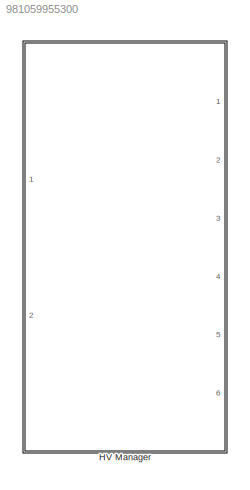
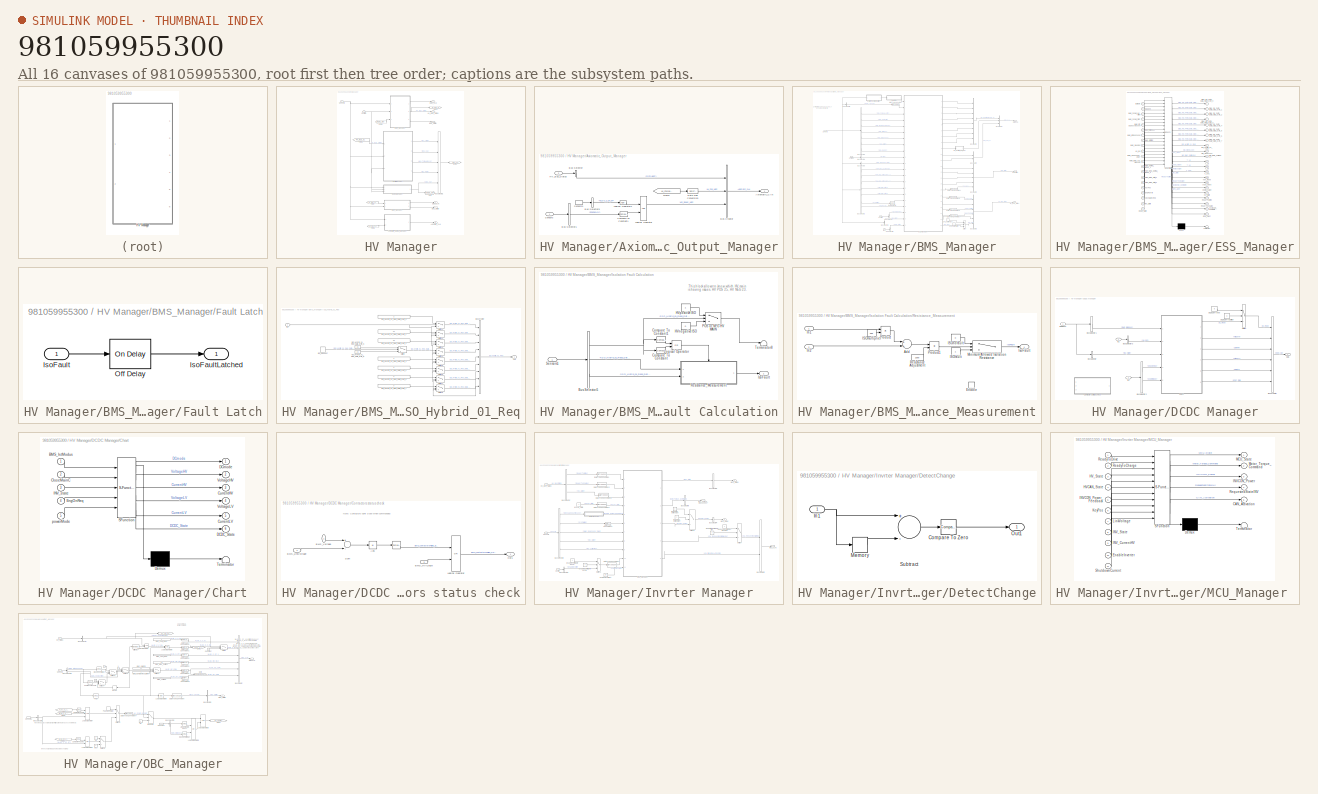
[diagram: thumbnail index - all 16 canvases of the model, root first then tree order]
MODEL slx_981059955300
KIND library
CONFIG AbsTol = auto
CONFIG EnableMultiTasking = off
CONFIG FixedStep = auto
CONFIG MaxStep = auto
CONFIG MinStep = auto
CONFIG RelTol = 1e-3
CONFIG SampleTimeConstraint = Unconstrained
CONFIG Solver = VariableStepAuto
CONFIG SolverName = VariableStepAuto
CONFIG StartTime = 0.0
CONFIG StopTime = 10.0
BLOCK [SubSystem] HV Manager
  Ports = [2, 6]
  RequestExecContextInheritance = off
  Variant = off
BLOCK [Outport] HV Manager/Axiomatic_CAN
  IconDisplay = Port number
  Port = 6
BLOCK [SubSystem] HV Manager/Axiomatic_Output_Manager
  Ports = [2, 1]
  RequestExecContextInheritance = off
  Variant = off
BLOCK [Outport] HV Manager/Axiomatic_Output_Manager/Axiomatic_CAN
  IconDisplay = Port number
BLOCK [BusCreator] HV Manager/Axiomatic_Output_Manager/Bus Creator
  DisplayOption = bar
  InheritFromInputs = on
  Inputs = 3
  Ports = [3, 1]
BLOCK [BusSelector] HV Manager/Axiomatic_Output_Manager/Bus Selector
  OutputAsBus = off
  OutputSignals = GFD_Light
  Ports = [1, 1]
BLOCK [BusSelector] HV Manager/Axiomatic_Output_Manager/Bus Selector1
  OutputAsBus = off
  OutputSignals = from_CAN.fromEBCAN.from_ECM.EngRunAtv
  Ports = [1, 1]
BLOCK [BusSelector] HV Manager/Axiomatic_Output_Manager/Bus Selector5
  OutputAsBus = off
  OutputSignals = from_CAN.fromHV_CAN.from_OBC.NLG5_ST.NLG5_S_CP_DT
  Ports = [1, 1]
BLOCK [Reference] HV Manager/Axiomatic_Output_Manager/Compare To Constant1  REF=simulink/Logic and Bit
Operations/Compare
To Constant
  Ports = [1, 1]
  SourceBlock = simulink/Logic and Bit\nOperations/Compare\nTo Constant
  SourceProductBaseCode = SL
  SourceProductName = Simulink
  SourceType = Compare To Constant
BLOCK [DataTypeConversion] HV Manager/Axiomatic_Output_Manager/Data Type Conversion
  RndMeth = Floor
  SaturateOnIntegerOverflow = off
BLOCK [From] HV Manager/Axiomatic_Output_Manager/From5
  GotoTag = HV_Charge_Indicator
  TagVisibility = global
BLOCK [Inport] HV Manager/Axiomatic_Output_Manager/HV_Bus_Status
  IconDisplay = Port number
  Port = 2
BLOCK [Logic] HV Manager/Axiomatic_Output_Manager/Logical Operator
  AllPortsSameDT = off
  OutDataTypeStr = boolean
  Ports = [2, 1]
BLOCK [Logic] HV Manager/Axiomatic_Output_Manager/Logical Operator1
  AllPortsSameDT = off
  Operator = NOT
  OutDataTypeStr = boolean
  Ports = [1, 1]
BLOCK [Inport] HV Manager/Axiomatic_Output_Manager/Sensors
  IconDisplay = Port number
BLOCK [InportShadow] HV Manager/Axiomatic_Output_Manager/Sensors1
  IconDisplay = Port number
BLOCK [Outport] HV Manager/BMS_CAN
  IconDisplay = Port number
BLOCK [Outport] HV Manager/BMS_Digital
  IconDisplay = Port number
  Port = 5
BLOCK [SubSystem] HV Manager/BMS_Manager
  Ports = [3, 3]
  RequestExecContextInheritance = off
  Variant = off
BLOCK [Outport] HV Manager/BMS_Manager/BMS CAN
  IconDisplay = Port number
BLOCK [Outport] HV Manager/BMS_Manager/BMS Digital
  IconDisplay = Port number
  Port = 3
BLOCK [BusCreator] HV Manager/BMS_Manager/Bus Creator
  DisplayOption = bar
  InheritFromInputs = on
  Inputs = 3
  Ports = [3, 1]
BLOCK [BusCreator] HV Manager/BMS_Manager/Bus Creator1
  DisplayOption = bar
  InheritFromInputs = on
  Inputs = 8
  Ports = [8, 1]
BLOCK [BusCreator] HV Manager/BMS_Manager/Bus Creator2
  DisplayOption = bar
  InheritFromInputs = on
  Inputs = 2
  Ports = [2, 1]
BLOCK [BusCreator] HV Manager/BMS_Manager/Bus Creator3
  DisplayOption = bar
  InheritFromInputs = on
  Inputs = 6
  Ports = [6, 1]
BLOCK [BusCreator] HV Manager/BMS_Manager/Bus Creator4
  DisplayOption = bar
  InheritFromInputs = on
  Inputs = 5
  Ports = [5, 1]
BLOCK [BusSelector] HV Manager/BMS_Manager/Bus Selector
  OutputAsBus = off
  OutputSignals = closeMaincReq
  Ports = [1, 1]
BLOCK [BusSelector] HV Manager/BMS_Manager/Bus Selector1
  OutputAsBus = off
  OutputSignals = from_CAN.fromHV_CAN.from_BMSHybrid.BMS_HYB_02.BMS_Fehler_HS_offen,from_CAN.fromHV_CAN.from_BMSHybrid.BMS_HYB_02.BMS_Fehler_Pilot,from_CAN.fromHV_CAN.from_BMSHybrid.BMS_HYB_02.BMS_Init_abgeschlossen,from_CAN.fromHV_CAN.from_BMSHybrid.BMS_HYB_02.BMS_IstModus,from_CAN.fromHV_CAN.from_BMSHybrid.BMS_HYB_02.BMS_IstSpannung,from_CAN.fromHV_CAN.from_BMSHybrid.BMS_HYB_02.BMS_IstStrom,from_CAN.fromHV_CAN.fr...<+36ch>
  Ports = [1, 7]
BLOCK [BusSelector] HV Manager/BMS_Manager/Bus Selector2
  OutputAsBus = off
  OutputSignals = from_CAN.fromEBCAN.from_BMSAntrieb.NMH_BMS.NMH_BMS_Car_WakeUp,from_CAN.fromEBCAN.from_BMSAntrieb.NMH_BMS.NMH_BMS_Normal_Mode_1,from_CAN.fromEBCAN.from_BMSAntrieb.NMH_BMS.NMH_BMS_Normal_Mode_2,from_CAN.fromEBCAN.from_BMSAntrieb.NMH_BMS.NMH_BMS_Start_1,from_CAN.fromEBCAN.from_BMSAntrieb.NMH_BMS.NMH_BMS_Start_2,from_CAN.fromVEH_CAN.from_BCM.SysPwrMd,from_CAN.fromEBCAN.from_ECM.EngRunAtv
  Ports = [1, 7]
BLOCK [BusSelector] HV Manager/BMS_Manager/Bus Selector3
  OutputAsBus = off
  OutputSignals = from_CAN.fromHV_CAN.from_BMSHybrid.BMS_Spannung_ZwKr
  Ports = [1, 1]
BLOCK [BusSelector] HV Manager/BMS_Manager/Bus Selector4
  OutputAsBus = off
  OutputSignals = HV_req
  Ports = [1, 1]
BLOCK [BusSelector] HV Manager/BMS_Manager/Bus Selector5
  OutputAsBus = off
  OutputSignals = from_CAN.fromHV_CAN.from_OBC.NLG5_ST.NLG5_S_CP_DT
  Ports = [1, 1]
BLOCK [BusSelector] HV Manager/BMS_Manager/Bus Selector6
  OutputAsBus = off
  OutputSignals = from_CAN.fromHV_CAN.from_MCU.INV_VCU_01.INV_State
  Ports = [1, 1]
BLOCK [BusSelector] HV Manager/BMS_Manager/Bus Selector7
  OutputAsBus = off
  OutputSignals = DCDC_State
  Ports = [1, 1]
BLOCK [Inport] HV Manager/BMS_Manager/Controls
  IconDisplay = Port number
  Port = 2
BLOCK [InportShadow] HV Manager/BMS_Manager/Controls1
  IconDisplay = Port number
  Port = 2
BLOCK [DataTypeConversion] HV Manager/BMS_Manager/Data Type Conversion
  OutDataTypeStr = boolean
  RndMeth = Floor
  SaturateOnIntegerOverflow = off
BLOCK [DataTypeConversion] HV Manager/BMS_Manager/Data Type Conversion1
  OutDataTypeStr = boolean
  RndMeth = Floor
  SaturateOnIntegerOverflow = off
BLOCK [DataTypeConversion] HV Manager/BMS_Manager/Data Type Conversion6
  OutDataTypeStr = boolean
  RndMeth = Floor
  SaturateOnIntegerOverflow = off
BLOCK [DataTypeConversion] HV Manager/BMS_Manager/Data Type Conversion7
  OutDataTypeStr = boolean
  RndMeth = Floor
  SaturateOnIntegerOverflow = off
BLOCK [DataTypeConversion] HV Manager/BMS_Manager/Data Type Conversion8
  OutDataTypeStr = boolean
  RndMeth = Floor
  SaturateOnIntegerOverflow = off
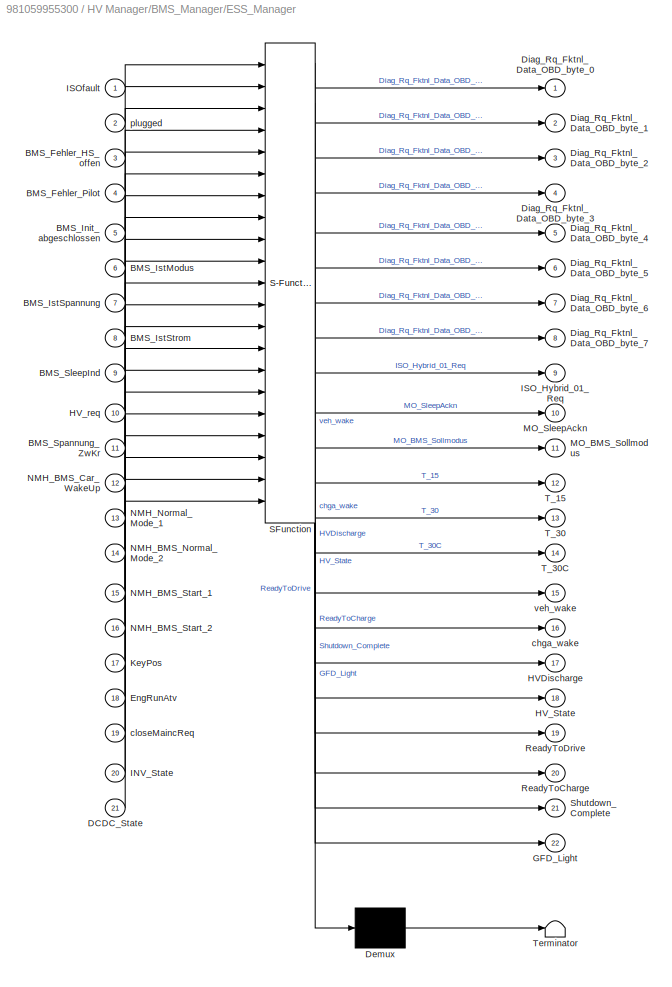
BLOCK [SubSystem] HV Manager/BMS_Manager/ESS_Manager
  ErrorFcn = Stateflow.Translate.translate
  PermitHierarchicalResolution = ExplicitOnly
  Ports = [21, 22]
  RequestExecContextInheritance = off
  SFBlockType = Chart
  ShowPortLabels = SignalName
  TreatAsAtomicUnit = on
  Variant = off
BLOCK [Demux] HV Manager/BMS_Manager/ESS_Manager/ Demux 
  Outputs = 1
  Ports = [1, 1]
BLOCK [S-Function] HV Manager/BMS_Manager/ESS_Manager/ SFunction 
  EnableBusSupport = off
  FunctionName = sf_sfun
  PortCounts = [21 23]
  Ports = [21, 23]
  SFcnIsStateOwnerBlock = off
  SFunctionDeploymentMode = off
  Tag = Stateflow S-Function lib_HVManager_PostIMG_2017a 9
BLOCK [Terminator] HV Manager/BMS_Manager/ESS_Manager/ Terminator 
BLOCK [Inport] HV Manager/BMS_Manager/ESS_Manager/BMS_Fehler_HS_offen
  IconDisplay = Port number
  Port = 3
BLOCK [Inport] HV Manager/BMS_Manager/ESS_Manager/BMS_Fehler_Pilot
  IconDisplay = Port number
  Port = 4
BLOCK [Inport] HV Manager/BMS_Manager/ESS_Manager/BMS_Init_abgeschlossen
  IconDisplay = Port number
  Port = 5
BLOCK [Inport] HV Manager/BMS_Manager/ESS_Manager/BMS_IstModus
  IconDisplay = Port number
  Port = 6
BLOCK [Inport] HV Manager/BMS_Manager/ESS_Manager/BMS_IstSpannung
  IconDisplay = Port number
  Port = 7
BLOCK [Inport] HV Manager/BMS_Manager/ESS_Manager/BMS_IstStrom
  IconDisplay = Port number
  Port = 8
BLOCK [Inport] HV Manager/BMS_Manager/ESS_Manager/BMS_SleepInd
  IconDisplay = Port number
  Port = 9
BLOCK [Inport] HV Manager/BMS_Manager/ESS_Manager/BMS_Spannung_ZwKr
  IconDisplay = Port number
  Port = 11
BLOCK [Inport] HV Manager/BMS_Manager/ESS_Manager/DCDC_State
  IconDisplay = Port number
  Port = 21
BLOCK [Outport] HV Manager/BMS_Manager/ESS_Manager/Diag_Rq_Fktnl_Data_OBD_byte_0
  IconDisplay = Port number
BLOCK [Outport] HV Manager/BMS_Manager/ESS_Manager/Diag_Rq_Fktnl_Data_OBD_byte_1
  IconDisplay = Port number
  Port = 2
BLOCK [Outport] HV Manager/BMS_Manager/ESS_Manager/Diag_Rq_Fktnl_Data_OBD_byte_2
  IconDisplay = Port number
  Port = 3
BLOCK [Outport] HV Manager/BMS_Manager/ESS_Manager/Diag_Rq_Fktnl_Data_OBD_byte_3
  IconDisplay = Port number
  Port = 4
BLOCK [Outport] HV Manager/BMS_Manager/ESS_Manager/Diag_Rq_Fktnl_Data_OBD_byte_4
  IconDisplay = Port number
  Port = 5
BLOCK [Outport] HV Manager/BMS_Manager/ESS_Manager/Diag_Rq_Fktnl_Data_OBD_byte_5
  IconDisplay = Port number
  Port = 6
BLOCK [Outport] HV Manager/BMS_Manager/ESS_Manager/Diag_Rq_Fktnl_Data_OBD_byte_6
  IconDisplay = Port number
  Port = 7
BLOCK [Outport] HV Manager/BMS_Manager/ESS_Manager/Diag_Rq_Fktnl_Data_OBD_byte_7
  IconDisplay = Port number
  Port = 8
BLOCK [Inport] HV Manager/BMS_Manager/ESS_Manager/EngRunAtv
  IconDisplay = Port number
  Port = 18
BLOCK [Outport] HV Manager/BMS_Manager/ESS_Manager/GFD_Light
  IconDisplay = Port number
  Port = 22
BLOCK [Outport] HV Manager/BMS_Manager/ESS_Manager/HVDischarge
  IconDisplay = Port number
  Port = 17
BLOCK [Outport] HV Manager/BMS_Manager/ESS_Manager/HV_State
  IconDisplay = Port number
  Port = 18
BLOCK [Inport] HV Manager/BMS_Manager/ESS_Manager/HV_req
  IconDisplay = Port number
  Port = 10
BLOCK [Inport] HV Manager/BMS_Manager/ESS_Manager/INV_State
  IconDisplay = Port number
  Port = 20
BLOCK [Outport] HV Manager/BMS_Manager/ESS_Manager/ISO_Hybrid_01_Req
  IconDisplay = Port number
  Port = 9
BLOCK [Inport] HV Manager/BMS_Manager/ESS_Manager/ISOfault
  IconDisplay = Port number
BLOCK [Inport] HV Manager/BMS_Manager/ESS_Manager/KeyPos
  IconDisplay = Port number
  Port = 17
BLOCK [Outport] HV Manager/BMS_Manager/ESS_Manager/MO_BMS_Sollmodus
  IconDisplay = Port number
  Port = 11
BLOCK [Outport] HV Manager/BMS_Manager/ESS_Manager/MO_SleepAckn
  IconDisplay = Port number
  Port = 10
BLOCK [Inport] HV Manager/BMS_Manager/ESS_Manager/NMH_BMS_Car_WakeUp
  IconDisplay = Port number
  Port = 12
BLOCK [Inport] HV Manager/BMS_Manager/ESS_Manager/NMH_BMS_Normal_Mode_2
  IconDisplay = Port number
  Port = 14
BLOCK [Inport] HV Manager/BMS_Manager/ESS_Manager/NMH_BMS_Start_1
  IconDisplay = Port number
  Port = 15
BLOCK [Inport] HV Manager/BMS_Manager/ESS_Manager/NMH_BMS_Start_2
  IconDisplay = Port number
  Port = 16
BLOCK [Inport] HV Manager/BMS_Manager/ESS_Manager/NMH_Normal_Mode_1
  IconDisplay = Port number
  Port = 13
BLOCK [Outport] HV Manager/BMS_Manager/ESS_Manager/ReadyToCharge
  IconDisplay = Port number
  Port = 20
BLOCK [Outport] HV Manager/BMS_Manager/ESS_Manager/ReadyToDrive
  IconDisplay = Port number
  Port = 19
BLOCK [Outport] HV Manager/BMS_Manager/ESS_Manager/Shutdown_Complete
  IconDisplay = Port number
  Port = 21
BLOCK [Outport] HV Manager/BMS_Manager/ESS_Manager/T_15
  IconDisplay = Port number
  Port = 12
BLOCK [Outport] HV Manager/BMS_Manager/ESS_Manager/T_30
  IconDisplay = Port number
  Port = 13
BLOCK [Outport] HV Manager/BMS_Manager/ESS_Manager/T_30C
  IconDisplay = Port number
  Port = 14
BLOCK [Outport] HV Manager/BMS_Manager/ESS_Manager/chga_wake
  IconDisplay = Port number
  Port = 16
BLOCK [Inport] HV Manager/BMS_Manager/ESS_Manager/closeMaincReq
  IconDisplay = Port number
  Port = 19
BLOCK [Inport] HV Manager/BMS_Manager/ESS_Manager/plugged
  IconDisplay = Port number
  Port = 2
BLOCK [Outport] HV Manager/BMS_Manager/ESS_Manager/veh_wake
  IconDisplay = Port number
  Port = 15
BLOCK [Reference] HV Manager/BMS_Manager/Edge Detector  REF=powerlib_meascontrol/Logic/Edge Detector
  Ports = [1, 1]
  SourceBlock = powerlib_meascontrol/Logic/Edge Detector
  SourceProductBaseCode = PS
  SourceProductName = Simscape Power Systems
  SourceType = Edge Detector
BLOCK [SubSystem] HV Manager/BMS_Manager/Fault Latch
  Ports = [1, 1]
  RequestExecContextInheritance = off
  Variant = off
BLOCK [Inport] HV Manager/BMS_Manager/Fault Latch/IsoFault
  IconDisplay = Port number
BLOCK [Outport] HV Manager/BMS_Manager/Fault Latch/IsoFaultLatched
  IconDisplay = Port number
BLOCK [Reference] HV Manager/BMS_Manager/Fault Latch/Off Delay  REF=powerlib_meascontrol/Logic/On Delay
  Ports = [1, 1]
  SourceBlock = powerlib_meascontrol/Logic/On Delay
  SourceProductBaseCode = PS
  SourceProductName = Simscape Power Systems
  SourceType = On/Off Delay
BLOCK [Constant] HV Manager/BMS_Manager/GFD_OvrrdSwitch
  Value = 0
BLOCK [Constant] HV Manager/BMS_Manager/GFD_OvrrdValue
BLOCK [Outport] HV Manager/BMS_Manager/HV_BUS_Status
  IconDisplay = Port number
  Port = 2
BLOCK [SubSystem] HV Manager/BMS_Manager/ISO_Hybrid_01_Req
  Ports = [1, 1]
  RequestExecContextInheritance = off
  Variant = off
BLOCK [BusCreator] HV Manager/BMS_Manager/ISO_Hybrid_01_Req/Bus Creator
  DisplayOption = bar
  InheritFromInputs = on
  Inputs = 9
  Ports = [9, 1]
BLOCK [Constant] HV Manager/BMS_Manager/ISO_Hybrid_01_Req/ISO_Hybrid_01_Req_Data_byte_0
  Value = 3
BLOCK [Constant] HV Manager/BMS_Manager/ISO_Hybrid_01_Req/ISO_Hybrid_01_Req_Data_byte_1
  Value = 34
BLOCK [Constant] HV Manager/BMS_Manager/ISO_Hybrid_01_Req/ISO_Hybrid_01_Req_Data_byte_2
  Value = 30
BLOCK [Constant] HV Manager/BMS_Manager/ISO_Hybrid_01_Req/ISO_Hybrid_01_Req_Data_byte_3
  Value = 25
BLOCK [Constant] HV Manager/BMS_Manager/ISO_Hybrid_01_Req/ISO_Hybrid_01_Req_Data_byte_4
  Value = 0
BLOCK [Constant] HV Manager/BMS_Manager/ISO_Hybrid_01_Req/ISO_Hybrid_01_Req_Data_byte_5
  Value = 0
BLOCK [Constant] HV Manager/BMS_Manager/ISO_Hybrid_01_Req/ISO_Hybrid_01_Req_Data_byte_6
  Value = 0
BLOCK [Constant] HV Manager/BMS_Manager/ISO_Hybrid_01_Req/ISO_Hybrid_01_Req_Data_byte_7
  Value = 0
BLOCK [Constant] HV Manager/BMS_Manager/ISO_Hybrid_01_Req/ISO_Hybrid_01_Req_Data_byte_8
  Value = 23
BLOCK [DiscretePulseGenerator] HV Manager/BMS_Manager/ISO_Hybrid_01_Req/ISO_Request
  Period = 0.5
  Ports = [0, 1]
  PulseType = Time based
  PulseWidth = 50
  SampleTime = -1
BLOCK [Inport] HV Manager/BMS_Manager/ISO_Hybrid_01_Req/In1
  IconDisplay = Port number
BLOCK [Outport] HV Manager/BMS_Manager/ISO_Hybrid_01_Req/Out1
  IconDisplay = Port number
BLOCK [Switch] HV Manager/BMS_Manager/ISO_Hybrid_01_Req/Switch
  Criteria = u2 > Threshold
  InputSameDT = off
  SaturateOnIntegerOverflow = off
BLOCK [Switch] HV Manager/BMS_Manager/ISO_Hybrid_01_Req/Switch1
  Criteria = u2 > Threshold
  InputSameDT = off
  SaturateOnIntegerOverflow = off
BLOCK [Switch] HV Manager/BMS_Manager/ISO_Hybrid_01_Req/Switch2
  Criteria = u2 > Threshold
  InputSameDT = off
  SaturateOnIntegerOverflow = off
BLOCK [Switch] HV Manager/BMS_Manager/ISO_Hybrid_01_Req/Switch3
  Criteria = u2 > Threshold
  InputSameDT = off
  SaturateOnIntegerOverflow = off
BLOCK [Switch] HV Manager/BMS_Manager/ISO_Hybrid_01_Req/Switch4
  Criteria = u2 > Threshold
  InputSameDT = off
  SaturateOnIntegerOverflow = off
BLOCK [Switch] HV Manager/BMS_Manager/ISO_Hybrid_01_Req/Switch5
  Criteria = u2 > Threshold
  InputSameDT = off
  SaturateOnIntegerOverflow = off
BLOCK [Switch] HV Manager/BMS_Manager/ISO_Hybrid_01_Req/Switch6
  Criteria = u2 > Threshold
  InputSameDT = off
  SaturateOnIntegerOverflow = off
BLOCK [Switch] HV Manager/BMS_Manager/ISO_Hybrid_01_Req/Switch7
  Criteria = u2 > Threshold
  InputSameDT = off
  SaturateOnIntegerOverflow = off
BLOCK [Switch] HV Manager/BMS_Manager/ISO_Hybrid_01_Req/Switch8
  Criteria = u2 > Threshold
  InputSameDT = off
  SaturateOnIntegerOverflow = off
BLOCK [Inport] HV Manager/BMS_Manager/In1
  IconDisplay = Port number
  Port = 3
BLOCK [SubSystem] HV Manager/BMS_Manager/Isolation Fault Calculation
  Ports = [1, 1]
  RequestExecContextInheritance = off
  Variant = off
BLOCK [BusSelector] HV Manager/BMS_Manager/Isolation Fault Calculation/Bus Selector5
  OutputAsBus = off
  OutputSignals = from_CAN.fromEBCAN.from_BMSAntrieb.ISO_Hybrid_01_Resp_Data.ISO_Hybrid_01_Resp_Data_byte_3,from_CAN.fromEBCAN.from_BMSAntrieb.ISO_Hybrid_01_Resp_Data.ISO_Hybrid_01_Resp_Data_byte_4,from_CAN.fromEBCAN.from_BMSAntrieb.ISO_Hybrid_01_Resp_Data.ISO_Hybrid_01_Resp_Data_byte_5
  Ports = [1, 3]
BLOCK [Reference] HV Manager/BMS_Manager/Isolation Fault Calculation/Compare To Constant  REF=simulink/Logic and Bit
Operations/Compare
To Constant
  Ports = [1, 1]
  SourceBlock = simulink/Logic and Bit\nOperations/Compare\nTo Constant
  SourceProductBaseCode = SL
  SourceProductName = Simulink
  SourceType = Compare To Constant
BLOCK [Reference] HV Manager/BMS_Manager/Isolation Fault Calculation/Compare To Constant1  REF=simulink/Logic and Bit
Operations/Compare
To Constant
  Ports = [1, 1]
  SourceBlock = simulink/Logic and Bit\nOperations/Compare\nTo Constant
  SourceProductBaseCode = SL
  SourceProductName = Simulink
  SourceType = Compare To Constant
BLOCK [Constant] HV Manager/BMS_Manager/Isolation Fault Calculation/HVnegativeISO
  Value = 0
BLOCK [Constant] HV Manager/BMS_Manager/Isolation Fault Calculation/HVpositiveISO
BLOCK [Outport] HV Manager/BMS_Manager/Isolation Fault Calculation/IsoFault
  IconDisplay = Port number
BLOCK [Logic] HV Manager/BMS_Manager/Isolation Fault Calculation/Logical Operator
  AllPortsSameDT = off
  Operator = OR
  OutDataTypeStr = boolean
  Ports = [2, 1]
BLOCK [Switch] HV Manager/BMS_Manager/Isolation Fault Calculation/POS or NEG HV MAIN
  Criteria = u2 > Threshold
  InputSameDT = off
  SaturateOnIntegerOverflow = off
  Threshold = 24
BLOCK [SubSystem] HV Manager/BMS_Manager/Isolation Fault Calculation/Resistance_Measurement
  Ports = [2, 1, 1]
  RequestExecContextInheritance = off
  Variant = off
BLOCK [Sum] HV Manager/BMS_Manager/Isolation Fault Calculation/Resistance_Measurement/Add
  InputSameDT = off
  OutDataTypeStr = Inherit: Inherit via internal rule
  Ports = [2, 1]
  SaturateOnIntegerOverflow = off
BLOCK [EnablePort] HV Manager/BMS_Manager/Isolation Fault Calculation/Resistance_Measurement/Enable
  Ports = []
BLOCK [Constant] HV Manager/BMS_Manager/Isolation Fault Calculation/Resistance_Measurement/ISOfault
BLOCK [Constant] HV Manager/BMS_Manager/Isolation Fault Calculation/Resistance_Measurement/ISOmultiplier
  Value = 256
BLOCK [Constant] HV Manager/BMS_Manager/Isolation Fault Calculation/Resistance_Measurement/ISOnofault
  Value = 0
BLOCK [Inport] HV Manager/BMS_Manager/Isolation Fault Calculation/Resistance_Measurement/In1
  IconDisplay = Port number
BLOCK [Inport] HV Manager/BMS_Manager/Isolation Fault Calculation/Resistance_Measurement/In2
  IconDisplay = Port number
  Port = 2
BLOCK [Outport] HV Manager/BMS_Manager/Isolation Fault Calculation/Resistance_Measurement/IsoFault
  IconDisplay = Port number
BLOCK [Switch] HV Manager/BMS_Manager/Isolation Fault Calculation/Resistance_Measurement/Minimum Allowed Isolation Resistance
  Criteria = u2 > Threshold
  InputSameDT = off
  SaturateOnIntegerOverflow = off
  Threshold = 500000
BLOCK [Product] HV Manager/BMS_Manager/Isolation Fault Calculation/Resistance_Measurement/Product
  InputSameDT = off
  OutDataTypeStr = Inherit: Inherit via internal rule
  Ports = [2, 1]
  RndMeth = Floor
  SaturateOnIntegerOverflow = off
BLOCK [Product] HV Manager/BMS_Manager/Isolation Fault Calculation/Resistance_Measurement/Product1
  InputSameDT = off
  OutDataTypeStr = Inherit: Inherit via internal rule
  Ports = [2, 1]
  RndMeth = Floor
  SaturateOnIntegerOverflow = off
BLOCK [Constant] HV Manager/BMS_Manager/Isolation Fault Calculation/Resistance_Measurement/Resistance Adjustment
  Value = 1000
BLOCK [Inport] HV Manager/BMS_Manager/Isolation Fault Calculation/Sensors1
  IconDisplay = Port number
BLOCK [Terminator] HV Manager/BMS_Manager/Isolation Fault Calculation/Terminator8
BLOCK [Inport] HV Manager/BMS_Manager/Sensors
  IconDisplay = Port number
BLOCK [Switch] HV Manager/BMS_Manager/Switch
  Criteria = u2 > Threshold
  InputSameDT = off
  SaturateOnIntegerOverflow = off
BLOCK [BusCreator] HV Manager/Bus Creator1
  DisplayOption = bar
  InheritFromInputs = on
  Inputs = 5
  Ports = [5, 1]
BLOCK [Inport] HV Manager/Controls
  IconDisplay = Port number
  Port = 2
BLOCK [SubSystem] HV Manager/DCDC Manager
  Ports = [3, 1]
  RequestExecContextInheritance = off
  Variant = off
BLOCK [Inport] HV Manager/DCDC Manager/BMSInput
  IconDisplay = Port number
BLOCK [BusCreator] HV Manager/DCDC Manager/Bus Creator
  DisplayOption = bar
  InheritFromInputs = on
  Inputs = 6
  Ports = [6, 1]
BLOCK [BusSelector] HV Manager/DCDC Manager/Bus Selector
  OutputAsBus = off
  OutputSignals = from_CAN.fromHV_CAN.from_MCU.INV_VCU_01.INV_State
  Ports = [1, 1]
BLOCK [BusSelector] HV Manager/DCDC Manager/Bus Selector1
  OutputAsBus = off
  OutputSignals = from_CAN.fromHV_CAN.from_BMSHybrid.BMS_HYB_02.BMS_IstModus
  Ports = [1, 1]
BLOCK [BusSelector] HV Manager/DCDC Manager/Bus Selector2
  OutputAsBus = off
  OutputSignals = EngOnReq,powerMode
  Ports = [1, 2]
BLOCK [BusSelector] HV Manager/DCDC Manager/Bus Selector3
  OutputAsBus = off
  OutputSignals = HV_req
  Ports = [1, 1]
BLOCK [SubSystem] HV Manager/DCDC Manager/Chart
  ErrorFcn = Stateflow.Translate.translate
  PermitHierarchicalResolution = ExplicitOnly
  Ports = [5, 6]
  RequestExecContextInheritance = off
  SFBlockType = Chart
  TreatAsAtomicUnit = on
  Variant = off
BLOCK [Demux] HV Manager/DCDC Manager/Chart/ Demux 
  Outputs = 1
  Ports = [1, 1]
BLOCK [S-Function] HV Manager/DCDC Manager/Chart/ SFunction 
  EnableBusSupport = off
  FunctionName = sf_sfun
  PortCounts = [5 7]
  Ports = [5, 7]
  SFcnIsStateOwnerBlock = off
  SFunctionDeploymentMode = off
  Tag = Stateflow S-Function lib_HVManager_PostIMG_2017a 2
BLOCK [Terminator] HV Manager/DCDC Manager/Chart/ Terminator 
BLOCK [Inport] HV Manager/DCDC Manager/Chart/BMS_IstModus
  IconDisplay = Port number
BLOCK [Inport] HV Manager/DCDC Manager/Chart/CloseMainC
  IconDisplay = Port number
  Port = 2
BLOCK [Outport] HV Manager/DCDC Manager/Chart/CurrentHV
  IconDisplay = Port number
  Port = 3
BLOCK [Outport] HV Manager/DCDC Manager/Chart/CurrentLV
  IconDisplay = Port number
  Port = 5
BLOCK [Outport] HV Manager/DCDC Manager/Chart/DCDC_State
  IconDisplay = Port number
  Port = 6
BLOCK [Outport] HV Manager/DCDC Manager/Chart/DCmode
  IconDisplay = Port number
BLOCK [Inport] HV Manager/DCDC Manager/Chart/EngOnReq
  IconDisplay = Port number
  Port = 4
BLOCK [Inport] HV Manager/DCDC Manager/Chart/INV_state
  IconDisplay = Port number
  Port = 3
BLOCK [Outport] HV Manager/DCDC Manager/Chart/VoltageHV
  IconDisplay = Port number
  Port = 2
BLOCK [Outport] HV Manager/DCDC Manager/Chart/VoltageLV
  IconDisplay = Port number
  Port = 4
BLOCK [Inport] HV Manager/DCDC Manager/Chart/powerMode
  IconDisplay = Port number
  Port = 5
BLOCK [SubSystem] HV Manager/DCDC Manager/Contactors status check
  Commented = on
  Ports = [3, 1]
  RequestExecContextInheritance = off
  Variant = off
BLOCK [Reference] HV Manager/DCDC Manager/Contactors status check/   REF=simulink/Logic and Bit
Operations/Compare
To Constant
  Ports = [1, 1]
  SourceBlock = simulink/Logic and Bit\nOperations/Compare\nTo Constant
  SourceProductBaseCode = SL
  SourceProductName = Simulink
  SourceType = Compare To Constant
BLOCK [Abs] HV Manager/DCDC Manager/Contactors status check/Abs
  SaturateOnIntegerOverflow = off
BLOCK [Inport] HV Manager/DCDC Manager/Contactors status check/BMS_HVILfault
  IconDisplay = Port number
  Port = 3
BLOCK [Inport] HV Manager/DCDC Manager/Contactors status check/BMS_LinkVoltage
  IconDisplay = Port number
  Port = 2
BLOCK [Inport] HV Manager/DCDC Manager/Contactors status check/BMS_Voltage
  IconDisplay = Port number
BLOCK [Logic] HV Manager/DCDC Manager/Contactors status check/Logical Operator
  AllPortsSameDT = off
  Operator = OR
  OutDataTypeStr = boolean
  Ports = [2, 1]
BLOCK [Outport] HV Manager/DCDC Manager/Contactors status check/Out1
  IconDisplay = Port number
BLOCK [Sum] HV Manager/DCDC Manager/Contactors status check/Sum
  InputSameDT = off
  Inputs = +-
  OutDataTypeStr = Inherit: Inherit via internal rule
  Ports = [2, 1]
  SaturateOnIntegerOverflow = off
BLOCK [Constant] HV Manager/DCDC Manager/DCDCOVrrdSwitch
  Value = 0
BLOCK [Constant] HV Manager/DCDC Manager/DCDCOVrrdVal
  Value = 0
BLOCK [Inport] HV Manager/DCDC Manager/In1
  IconDisplay = Port number
  Port = 2
BLOCK [Inport] HV Manager/DCDC Manager/In2
  IconDisplay = Port number
  Port = 3
BLOCK [Outport] HV Manager/DCDC Manager/Out1
  IconDisplay = Port number
BLOCK [Switch] HV Manager/DCDC Manager/Switch
  Criteria = u2 > Threshold
  InputSameDT = off
  SaturateOnIntegerOverflow = off
BLOCK [From] HV Manager/From
  GotoTag = HV_BUS_Status
BLOCK [From] HV Manager/From1
  GotoTag = HV_BUS_Status
BLOCK [From] HV Manager/From2
  GotoTag = HV_BUS_Status
BLOCK [From] HV Manager/From3
  GotoTag = DCDC_Out
BLOCK [Goto] HV Manager/Goto
  GotoTag = DCDC_Out
BLOCK [Goto] HV Manager/Goto1
  GotoTag = HV_BUS_Status
BLOCK [Goto] HV Manager/Goto2
  GotoTag = MCU_CAN
  TagVisibility = global
BLOCK [Outport] HV Manager/HV_BUS_Status
  IconDisplay = Port number
  Port = 2
BLOCK [SubSystem] HV Manager/Invrter Manager
  Ports = [3, 4]
  RequestExecContextInheritance = off
  Variant = off
BLOCK [BusCreator] HV Manager/Invrter Manager/Bus Creator2
  DisplayOption = bar
  InheritFromInputs = on
  Inputs = 1
  Ports = [1, 1]
BLOCK [BusCreator] HV Manager/Invrter Manager/Bus Creator3
  DisplayOption = bar
  InheritFromInputs = on
  Inputs = 2
  Ports = [2, 1]
BLOCK [BusCreator] HV Manager/Invrter Manager/Bus Creator4
  DisplayOption = bar
  InheritFromInputs = on
  Inputs = 1
  Ports = [1, 1]
BLOCK [BusCreator] HV Manager/Invrter Manager/Bus Creator5
  DisplayOption = bar
  InheritFromInputs = on
  Inputs = 1
  Ports = [1, 1]
BLOCK [BusSelector] HV Manager/Invrter Manager/Bus Selector
  OutputAsBus = off
  OutputSignals = ReadyToDrive,ReadyToCharge,HV_State
  Ports = [1, 3]
BLOCK [BusSelector] HV Manager/Invrter Manager/Bus Selector1
  OutputAsBus = off
  OutputSignals = EnableInverter
  Ports = [1, 1]
BLOCK [BusSelector] HV Manager/Invrter Manager/Bus Selector3
  OutputAsBus = off
  OutputSignals = from_CAN.fromHV_CAN.from_MCU.INV_VCU_01.MessageCounter_200,from_CAN.fromVEH_CAN.from_BCM.SysPwrMd,from_CAN.fromHV_CAN.from_BMSHybrid.BMS_Spannung_ZwKr,from_CAN.fromHV_CAN.from_MCU.INV_VCU_01.INV_State,from_CAN.fromHV_CAN.from_MCU.INV_VCU_01.INV_CurrentHV
  Ports = [1, 5]
BLOCK [Inport] HV Manager/Invrter Manager/Control
  IconDisplay = Port number
  Port = 3
BLOCK [DataTypeConversion] HV Manager/Invrter Manager/Data Type Conversion
  OutDataTypeStr = boolean
  RndMeth = Floor
  SaturateOnIntegerOverflow = off
BLOCK [DataTypeConversion] HV Manager/Invrter Manager/Data Type Conversion1
  OutDataTypeStr = boolean
  RndMeth = Floor
  SaturateOnIntegerOverflow = off
BLOCK [DataTypeConversion] HV Manager/Invrter Manager/Data Type Conversion2
  RndMeth = Floor
  SaturateOnIntegerOverflow = off
BLOCK [DataTypeConversion] HV Manager/Invrter Manager/Data Type Conversion3
  OutDataTypeStr = boolean
  RndMeth = Floor
  SaturateOnIntegerOverflow = off
BLOCK [DataTypeConversion] HV Manager/Invrter Manager/Data Type Conversion4
  OutDataTypeStr = int8
  RndMeth = Floor
  SaturateOnIntegerOverflow = off
BLOCK [DataTypeConversion] HV Manager/Invrter Manager/Data Type Conversion5
  RndMeth = Floor
  SaturateOnIntegerOverflow = off
BLOCK [SubSystem] HV Manager/Invrter Manager/DetectChange
  Ports = [1, 1]
  RequestExecContextInheritance = off
  Variant = off
BLOCK [Reference] HV Manager/Invrter Manager/DetectChange/Compare To Zero  REF=simulink/Logic and Bit
Operations/Compare
To Zero
  Ports = [1, 1]
  SourceBlock = simulink/Logic and Bit\nOperations/Compare\nTo Zero
  SourceProductBaseCode = SL
  SourceProductName = Simulink
  SourceType = Compare To Zero
BLOCK [Inport] HV Manager/Invrter Manager/DetectChange/In1
  IconDisplay = Port number
BLOCK [Memory] HV Manager/Invrter Manager/DetectChange/Memory
BLOCK [Outport] HV Manager/Invrter Manager/DetectChange/Out1
  IconDisplay = Port number
BLOCK [Sum] HV Manager/Invrter Manager/DetectChange/Subtract
  InputSameDT = off
  Inputs = +-
  OutDataTypeStr = Inherit: Inherit via internal rule
  Ports = [2, 1]
  SaturateOnIntegerOverflow = off
BLOCK [Constant] HV Manager/Invrter Manager/EnableInverterOvrrideSW
  Value = 0
BLOCK [Constant] HV Manager/Invrter Manager/EnableInverterOvrrideVal
  Value = 0
BLOCK [Constant] HV Manager/Invrter Manager/HVCAN_State
BLOCK [Inport] HV Manager/Invrter Manager/HV_Bus_Status
  IconDisplay = Port number
BLOCK [Constant] HV Manager/Invrter Manager/INVpower_OvrrdSwtch
  Value = 0
BLOCK [Constant] HV Manager/Invrter Manager/INVpower_OvrrdValue
BLOCK [Outport] HV Manager/Invrter Manager/MCU_CAN
  IconDisplay = Port number
  Port = 2
BLOCK [SubSystem] HV Manager/Invrter Manager/MCU_Manager 
  ErrorFcn = Stateflow.Translate.translate
  PermitHierarchicalResolution = ExplicitOnly
  Ports = [11, 5]
  RequestExecContextInheritance = off
  SFBlockType = Chart
  TreatAsAtomicUnit = on
  Variant = off
BLOCK [Demux] HV Manager/Invrter Manager/MCU_Manager / Demux 
  Outputs = 1
  Ports = [1, 1]
BLOCK [S-Function] HV Manager/Invrter Manager/MCU_Manager / SFunction 
  EnableBusSupport = off
  FunctionName = sf_sfun
  PortCounts = [11 6]
  Ports = [11, 6]
  SFcnIsStateOwnerBlock = off
  SFunctionDeploymentMode = off
  Tag = Stateflow S-Function lib_HVManager_PostIMG_2017a 17
BLOCK [Terminator] HV Manager/Invrter Manager/MCU_Manager / Terminator 
BLOCK [Outport] HV Manager/Invrter Manager/MCU_Manager /CAN_Activation
  IconDisplay = Port number
  Port = 5
BLOCK [Inport] HV Manager/Invrter Manager/MCU_Manager /EnableInverter
  IconDisplay = Port number
  Port = 10
BLOCK [Inport] HV Manager/Invrter Manager/MCU_Manager /HVCAN_State
  IconDisplay = Port number
  Port = 4
BLOCK [Inport] HV Manager/Invrter Manager/MCU_Manager /HV_State
  IconDisplay = Port number
  Port = 3
BLOCK [Outport] HV Manager/Invrter Manager/MCU_Manager /INVCON_Power
  IconDisplay = Port number
  Port = 3
BLOCK [Inport] HV Manager/Invrter Manager/MCU_Manager /INVCON_Power_Feedback
  IconDisplay = Port number
  Port = 5
BLOCK [Inport] HV Manager/Invrter Manager/MCU_Manager /INV_CurrentHV
  IconDisplay = Port number
  Port = 9
BLOCK [Inport] HV Manager/Invrter Manager/MCU_Manager /INV_State
  IconDisplay = Port number
  Port = 8
BLOCK [Inport] HV Manager/Invrter Manager/MCU_Manager /KeyPos
  IconDisplay = Port number
  Port = 6
BLOCK [Inport] HV Manager/Invrter Manager/MCU_Manager /LinkVoltage
  IconDisplay = Port number
  Port = 7
BLOCK [Outport] HV Manager/Invrter Manager/MCU_Manager /MCU_State
  IconDisplay = Port number
BLOCK [Outport] HV Manager/Invrter Manager/MCU_Manager /Motor_Torque_Command
  IconDisplay = Port number
  Port = 2
BLOCK [Inport] HV Manager/Invrter Manager/MCU_Manager /ReadyToCharge
  IconDisplay = Port number
  Port = 2
BLOCK [Inport] HV Manager/Invrter Manager/MCU_Manager /ReadyToDrive
  IconDisplay = Port number
BLOCK [Outport] HV Manager/Invrter Manager/MCU_Manager /RequestedStateINV
  IconDisplay = Port number
  Port = 4
BLOCK [Inport] HV Manager/Invrter Manager/MCU_Manager /ShutdownCurrent
  IconDisplay = Port number
  Port = 11
BLOCK [Outport] HV Manager/Invrter Manager/MCU_Relay
  IconDisplay = Port number
  Port = 4
BLOCK [Outport] HV Manager/Invrter Manager/MCU_Status
  IconDisplay = Port number
BLOCK [Outport] HV Manager/Invrter Manager/MCU_Torque_disconnect
  IconDisplay = Port number
  Port = 3
BLOCK [Constant] HV Manager/Invrter Manager/ReqStateOVrRDSwitch
  Value = 0
BLOCK [Constant] HV Manager/Invrter Manager/RequestedStateOvrRdValue
BLOCK [Inport] HV Manager/Invrter Manager/Sensors
  IconDisplay = Port number
  Port = 2
BLOCK [Constant] HV Manager/Invrter Manager/ShutdownCurrent
  Value = 0.5
BLOCK [Switch] HV Manager/Invrter Manager/Switch
  Criteria = u2 > Threshold
  InputSameDT = off
  SaturateOnIntegerOverflow = off
BLOCK [Switch] HV Manager/Invrter Manager/Switch1
  Criteria = u2 > Threshold
  InputSameDT = off
  SaturateOnIntegerOverflow = off
BLOCK [Switch] HV Manager/Invrter Manager/Switch5
  Criteria = u2 > Threshold
  InputSameDT = off
  SaturateOnIntegerOverflow = off
BLOCK [Outport] HV Manager/OBC_CAN
  IconDisplay = Port number
  Port = 3
BLOCK [Outport] HV Manager/OBC_Digital
  IconDisplay = Port number
  Port = 4
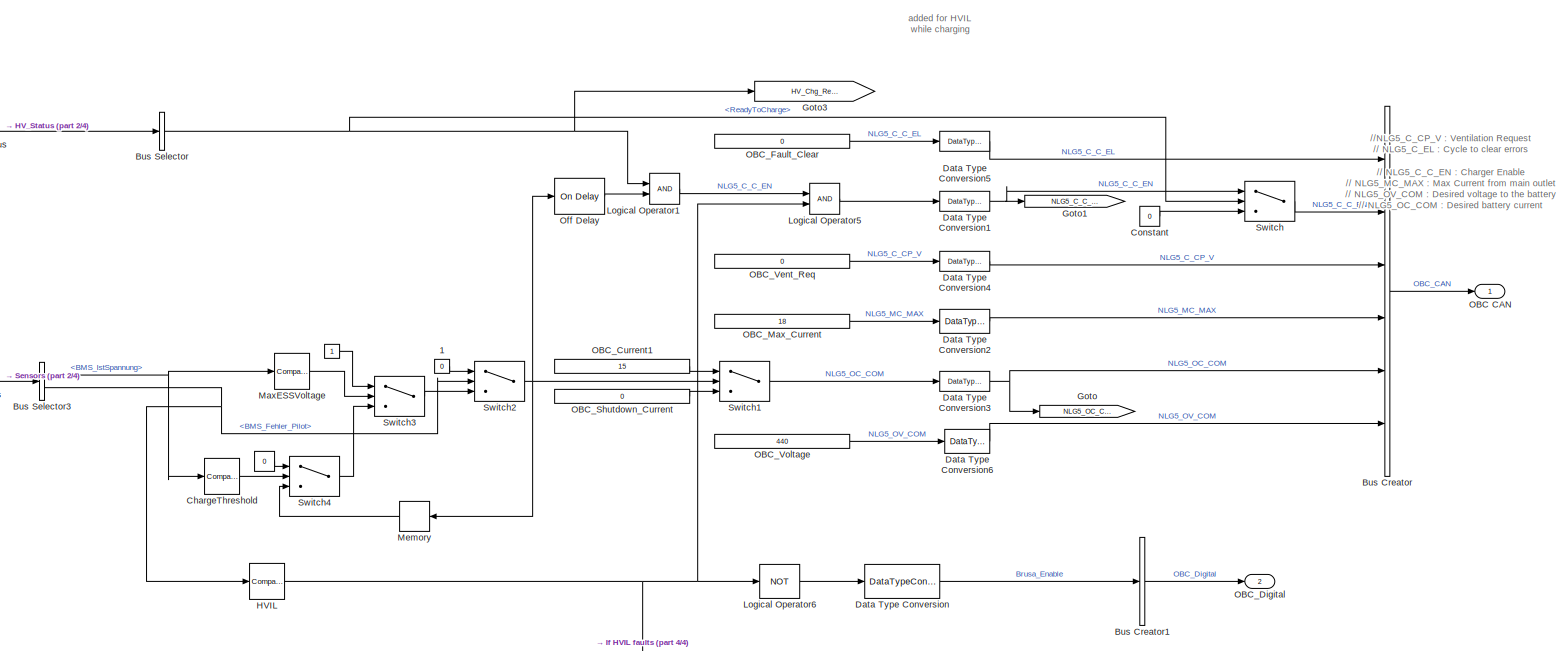
[diagram: HV Manager/OBC_Manager - part 1/4, full width, middle band]
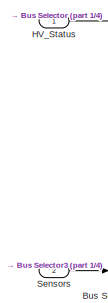
[diagram: HV Manager/OBC_Manager - part 2/4, top left region]
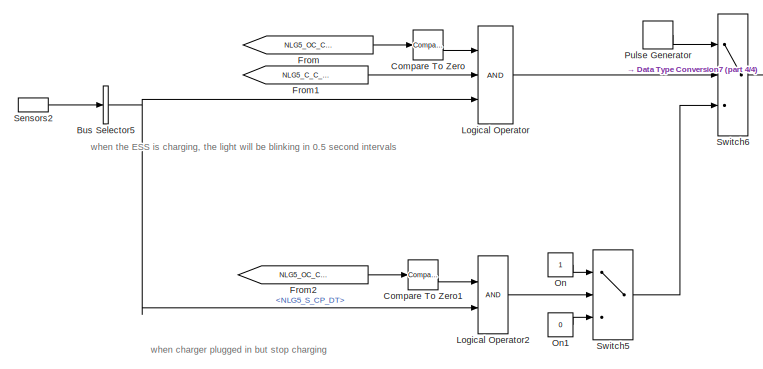
[diagram: HV Manager/OBC_Manager - part 3/4, bottom left region]
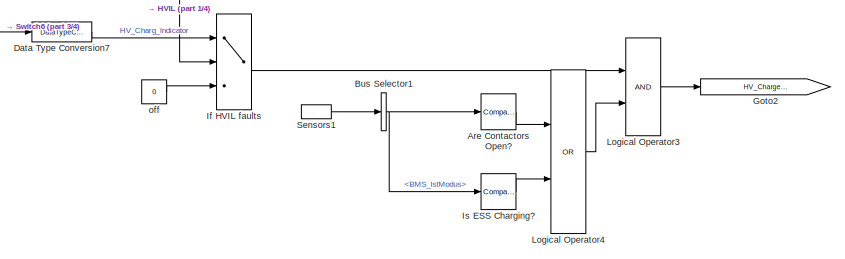
[diagram: HV Manager/OBC_Manager - part 4/4, bottom center region]
BLOCK [SubSystem] HV Manager/OBC_Manager
  Ports = [2, 2]
  RequestExecContextInheritance = off
  Variant = off
BLOCK [Constant] HV Manager/OBC_Manager/ 
BLOCK [Constant] HV Manager/OBC_Manager/   
  Value = 0
BLOCK [Constant] HV Manager/OBC_Manager/   1
  Value = 0
BLOCK [Reference] HV Manager/OBC_Manager/Are Contactors Open?  REF=simulink/Logic and Bit
Operations/Compare
To Constant
  Ports = [1, 1]
  SourceBlock = simulink/Logic and Bit\nOperations/Compare\nTo Constant
  SourceProductBaseCode = SL
  SourceProductName = Simulink
  SourceType = Compare To Constant
BLOCK [BusCreator] HV Manager/OBC_Manager/Bus Creator
  DisplayOption = bar
  InheritFromInputs = on
  Inputs = 6
  Ports = [6, 1]
BLOCK [BusCreator] HV Manager/OBC_Manager/Bus Creator1
  DisplayOption = bar
  InheritFromInputs = on
  Inputs = 1
  Ports = [1, 1]
BLOCK [BusSelector] HV Manager/OBC_Manager/Bus Selector
  OutputAsBus = off
  OutputSignals = ReadyToCharge
  Ports = [1, 1]
BLOCK [BusSelector] HV Manager/OBC_Manager/Bus Selector1
  OutputAsBus = off
  OutputSignals = from_CAN.fromHV_CAN.from_BMSHybrid.BMS_HYB_02.BMS_IstModus
  Ports = [1, 1]
BLOCK [BusSelector] HV Manager/OBC_Manager/Bus Selector3
  OutputAsBus = off
  OutputSignals = from_CAN.fromHV_CAN.from_BMSHybrid.BMS_HYB_02.BMS_IstSpannung,from_CAN.fromHV_CAN.from_BMSHybrid.BMS_HYB_02.BMS_Fehler_Pilot
  Ports = [1, 2]
BLOCK [BusSelector] HV Manager/OBC_Manager/Bus Selector5
  OutputAsBus = off
  OutputSignals = from_CAN.fromHV_CAN.from_OBC.NLG5_ST.NLG5_S_CP_DT
  Ports = [1, 1]
BLOCK [Reference] HV Manager/OBC_Manager/ChargeThreshold  REF=simulink/Logic and Bit
Operations/Compare
To Constant
  Ports = [1, 1]
  SourceBlock = simulink/Logic and Bit\nOperations/Compare\nTo Constant
  SourceProductBaseCode = SL
  SourceProductName = Simulink
  SourceType = Compare To Constant
BLOCK [Reference] HV Manager/OBC_Manager/Compare To Zero  REF=simulink/Logic and Bit
Operations/Compare
To Zero
  Ports = [1, 1]
  SourceBlock = simulink/Logic and Bit\nOperations/Compare\nTo Zero
  SourceProductBaseCode = SL
  SourceProductName = Simulink
  SourceType = Compare To Zero
BLOCK [Reference] HV Manager/OBC_Manager/Compare To Zero1  REF=simulink/Logic and Bit
Operations/Compare
To Zero
  Ports = [1, 1]
  SourceBlock = simulink/Logic and Bit\nOperations/Compare\nTo Zero
  SourceProductBaseCode = SL
  SourceProductName = Simulink
  SourceType = Compare To Zero
BLOCK [Constant] HV Manager/OBC_Manager/Constant
  Value = 0
BLOCK [DataTypeConversion] HV Manager/OBC_Manager/Data Type Conversion
  OutDataTypeStr = double
  RndMeth = Floor
  SaturateOnIntegerOverflow = off
BLOCK [DataTypeConversion] HV Manager/OBC_Manager/Data Type Conversion1
  RndMeth = Floor
  SaturateOnIntegerOverflow = off
BLOCK [DataTypeConversion] HV Manager/OBC_Manager/Data Type Conversion2
  RndMeth = Floor
  SaturateOnIntegerOverflow = off
BLOCK [DataTypeConversion] HV Manager/OBC_Manager/Data Type Conversion3
  RndMeth = Floor
  SaturateOnIntegerOverflow = off
BLOCK [DataTypeConversion] HV Manager/OBC_Manager/Data Type Conversion4
  RndMeth = Floor
  SaturateOnIntegerOverflow = off
BLOCK [DataTypeConversion] HV Manager/OBC_Manager/Data Type Conversion5
  RndMeth = Floor
  SaturateOnIntegerOverflow = off
BLOCK [DataTypeConversion] HV Manager/OBC_Manager/Data Type Conversion6
  RndMeth = Floor
  SaturateOnIntegerOverflow = off
BLOCK [DataTypeConversion] HV Manager/OBC_Manager/Data Type Conversion7
  OutDataTypeStr = boolean
  RndMeth = Floor
  SaturateOnIntegerOverflow = off
BLOCK [From] HV Manager/OBC_Manager/From
  GotoTag = NLG5_OC_COM
BLOCK [From] HV Manager/OBC_Manager/From1
  GotoTag = NLG5_C_C_EN
BLOCK [From] HV Manager/OBC_Manager/From2
  GotoTag = NLG5_OC_COM
BLOCK [Goto] HV Manager/OBC_Manager/Goto
  GotoTag = NLG5_OC_COM
BLOCK [Goto] HV Manager/OBC_Manager/Goto1
  GotoTag = NLG5_C_C_EN
BLOCK [Goto] HV Manager/OBC_Manager/Goto2
  GotoTag = HV_Charge_Indicator
  TagVisibility = global
BLOCK [Goto] HV Manager/OBC_Manager/Goto3
  GotoTag = HV_Chg_Ready
  TagVisibility = global
BLOCK [Reference] HV Manager/OBC_Manager/HVIL  REF=simulink/Logic and Bit
Operations/Compare
To Constant
  Ports = [1, 1]
  SourceBlock = simulink/Logic and Bit\nOperations/Compare\nTo Constant
  SourceProductBaseCode = SL
  SourceProductName = Simulink
  SourceType = Compare To Constant
BLOCK [Inport] HV Manager/OBC_Manager/HV_Status
  IconDisplay = Port number
BLOCK [Switch] HV Manager/OBC_Manager/If HVIL faults
  Criteria = u2 > Threshold
  InputSameDT = off
  SaturateOnIntegerOverflow = off
BLOCK [Reference] HV Manager/OBC_Manager/Is ESS Charging?  REF=simulink/Logic and Bit
Operations/Compare
To Constant
  Ports = [1, 1]
  SourceBlock = simulink/Logic and Bit\nOperations/Compare\nTo Constant
  SourceProductBaseCode = SL
  SourceProductName = Simulink
  SourceType = Compare To Constant
BLOCK [Logic] HV Manager/OBC_Manager/Logical Operator
  AllPortsSameDT = off
  Inputs = 3
  OutDataTypeStr = boolean
  Ports = [3, 1]
BLOCK [Logic] HV Manager/OBC_Manager/Logical Operator1
  AllPortsSameDT = off
  OutDataTypeStr = boolean
  Ports = [2, 1]
BLOCK [Logic] HV Manager/OBC_Manager/Logical Operator2
  AllPortsSameDT = off
  OutDataTypeStr = boolean
  Ports = [2, 1]
BLOCK [Logic] HV Manager/OBC_Manager/Logical Operator3
  AllPortsSameDT = off
  OutDataTypeStr = boolean
  Ports = [2, 1]
BLOCK [Logic] HV Manager/OBC_Manager/Logical Operator4
  AllPortsSameDT = off
  Operator = OR
  OutDataTypeStr = boolean
  Ports = [2, 1]
BLOCK [Logic] HV Manager/OBC_Manager/Logical Operator5
  AllPortsSameDT = off
  OutDataTypeStr = boolean
  Ports = [2, 1]
BLOCK [Logic] HV Manager/OBC_Manager/Logical Operator6
  AllPortsSameDT = off
  Inputs = 3
  Operator = NOT
  OutDataTypeStr = boolean
  Ports = [1, 1]
BLOCK [Reference] HV Manager/OBC_Manager/MaxESSVoltage  REF=simulink/Logic and Bit
Operations/Compare
To Constant
  Ports = [1, 1]
  SourceBlock = simulink/Logic and Bit\nOperations/Compare\nTo Constant
  SourceProductBaseCode = SL
  SourceProductName = Simulink
  SourceType = Compare To Constant
BLOCK [Memory] HV Manager/OBC_Manager/Memory
  InheritSampleTime = on
BLOCK [Outport] HV Manager/OBC_Manager/OBC CAN
  IconDisplay = Port number
BLOCK [Constant] HV Manager/OBC_Manager/OBC_Current1
  Value = 15
BLOCK [Outport] HV Manager/OBC_Manager/OBC_Digital
  IconDisplay = Port number
  Port = 2
BLOCK [Constant] HV Manager/OBC_Manager/OBC_Fault_Clear
  Value = 0
BLOCK [Constant] HV Manager/OBC_Manager/OBC_Max_Current
  Value = 18
BLOCK [Constant] HV Manager/OBC_Manager/OBC_Shutdown_Current
  Value = 0
BLOCK [Constant] HV Manager/OBC_Manager/OBC_Vent_Req
  Value = 0
BLOCK [Constant] HV Manager/OBC_Manager/OBC_Voltage
  Value = 440
BLOCK [Reference] HV Manager/OBC_Manager/Off Delay  REF=powerlib_meascontrol/Logic/On Delay
  Ports = [1, 1]
  SourceBlock = powerlib_meascontrol/Logic/On Delay
  SourceProductBaseCode = PS
  SourceProductName = Simscape Power Systems
  SourceType = On/Off Delay
BLOCK [Constant] HV Manager/OBC_Manager/On
BLOCK [Constant] HV Manager/OBC_Manager/On1
  Value = 0
BLOCK [DiscretePulseGenerator] HV Manager/OBC_Manager/Pulse Generator
  Period = 1
  Ports = [0, 1]
  PulseType = Time based
  PulseWidth = 50
BLOCK [Inport] HV Manager/OBC_Manager/Sensors
  IconDisplay = Port number
  Port = 2
BLOCK [InportShadow] HV Manager/OBC_Manager/Sensors1
  IconDisplay = Port number
  Port = 2
BLOCK [InportShadow] HV Manager/OBC_Manager/Sensors2
  IconDisplay = Port number
  Port = 2
BLOCK [Switch] HV Manager/OBC_Manager/Switch
  Criteria = u2 > Threshold
  InputSameDT = off
  SaturateOnIntegerOverflow = off
BLOCK [Switch] HV Manager/OBC_Manager/Switch1
  Criteria = u2 > Threshold
  InputSameDT = off
  SaturateOnIntegerOverflow = off
BLOCK [Switch] HV Manager/OBC_Manager/Switch2
  Criteria = u2 ~= 0
  InputSameDT = off
  SaturateOnIntegerOverflow = off
BLOCK [Switch] HV Manager/OBC_Manager/Switch3
  Criteria = u2 > Threshold
  InputSameDT = off
  SaturateOnIntegerOverflow = off
BLOCK [Switch] HV Manager/OBC_Manager/Switch4
  Criteria = u2 > Threshold
  InputSameDT = off
  SaturateOnIntegerOverflow = off
BLOCK [Switch] HV Manager/OBC_Manager/Switch5
  Criteria = u2 > Threshold
  InputSameDT = off
  SaturateOnIntegerOverflow = off
BLOCK [Switch] HV Manager/OBC_Manager/Switch6
  Criteria = u2 > Threshold
  InputSameDT = off
  SaturateOnIntegerOverflow = off
BLOCK [Constant] HV Manager/OBC_Manager/off
  Value = 0
BLOCK [Inport] HV Manager/Sensors
  IconDisplay = Port number
ANNOTATION HV Manager/BMS_Manager: Control Pilot signal added 02/14/2017 to charge automatically
ANNOTATION HV Manager/BMS_Manager/Isolation Fault Calculation: This block allows to know which HV main is having issues. HV POS 25, HV NEG 23.
ANNOTATION HV Manager/DCDC Manager/Contactors status check: Note: Contactors don't close when commanded
ANNOTATION HV Manager/OBC_Manager: //NLG5_C_CP_V : Ventilation Request // NLG5_C_EL : Cycle to clear errors // NLG5_C_C_EN : Charger Enable // NLG5_MC_MAX : Max Current from main outlet // NLG5_OV_COM : Desired voltage to the battery // NLG5_OC_COM : Desired battery current
ANNOTATION HV Manager/OBC_Manager: added for HVIL while charging
ANNOTATION HV Manager/OBC_Manager: when charger plugged in but stop charging
ANNOTATION HV Manager/OBC_Manager: when the ESS is charging, the light will be blinking in 0.5 second intervals
LINE HV Manager/Axiomatic_Output_Manager/Bus Creator:1 -> HV Manager/Axiomatic_Output_Manager/Axiomatic_CAN:1
LINE HV Manager/Axiomatic_Output_Manager/Bus Selector1:1 -> HV Manager/Axiomatic_Output_Manager/Compare To Constant1:1
LINE HV Manager/Axiomatic_Output_Manager/Bus Selector5:1 -> HV Manager/Axiomatic_Output_Manager/Logical Operator1:1
LINE HV Manager/Axiomatic_Output_Manager/Bus Selector:1 -> HV Manager/Axiomatic_Output_Manager/Bus Creator:1
LINE HV Manager/Axiomatic_Output_Manager/Compare To Constant1:1 -> HV Manager/Axiomatic_Output_Manager/Logical Operator:2
LINE HV Manager/Axiomatic_Output_Manager/Data Type Conversion:1 -> HV Manager/Axiomatic_Output_Manager/Bus Creator:2
LINE HV Manager/Axiomatic_Output_Manager/From5:1 -> HV Manager/Axiomatic_Output_Manager/Data Type Conversion:1
LINE HV Manager/Axiomatic_Output_Manager/HV_Bus_Status:1 -> HV Manager/Axiomatic_Output_Manager/Bus Selector:1
LINE HV Manager/Axiomatic_Output_Manager/Logical Operator1:1 -> HV Manager/Axiomatic_Output_Manager/Logical Operator:1
LINE HV Manager/Axiomatic_Output_Manager/Logical Operator:1 -> HV Manager/Axiomatic_Output_Manager/Bus Creator:3
LINE HV Manager/Axiomatic_Output_Manager/Sensors1:1 -> HV Manager/Axiomatic_Output_Manager/Bus Selector5:1
LINE HV Manager/Axiomatic_Output_Manager/Sensors:1 -> HV Manager/Axiomatic_Output_Manager/Bus Selector1:1
LINE HV Manager/Axiomatic_Output_Manager:1 -> HV Manager/Axiomatic_CAN:1
LINE HV Manager/BMS_Manager/Bus Creator1:1 -> HV Manager/BMS_Manager/Bus Creator:1
LINE HV Manager/BMS_Manager/Bus Creator2:1 -> HV Manager/BMS_Manager/Bus Creator:3
LINE HV Manager/BMS_Manager/Bus Creator3:1 -> HV Manager/BMS_Manager/HV_BUS_Status:1
LINE HV Manager/BMS_Manager/Bus Creator4:1 -> HV Manager/BMS_Manager/BMS Digital:1
LINE HV Manager/BMS_Manager/Bus Creator:1 -> HV Manager/BMS_Manager/BMS CAN:1
LINE HV Manager/BMS_Manager/Bus Selector1:1 -> HV Manager/BMS_Manager/ESS_Manager:3
LINE HV Manager/BMS_Manager/Bus Selector1:2 -> HV Manager/BMS_Manager/ESS_Manager:4
LINE HV Manager/BMS_Manager/Bus Selector1:3 -> HV Manager/BMS_Manager/ESS_Manager:5
LINE HV Manager/BMS_Manager/Bus Selector1:4 -> HV Manager/BMS_Manager/ESS_Manager:6
LINE HV Manager/BMS_Manager/Bus Selector1:5 -> HV Manager/BMS_Manager/ESS_Manager:7
LINE HV Manager/BMS_Manager/Bus Selector1:6 -> HV Manager/BMS_Manager/ESS_Manager:8
LINE HV Manager/BMS_Manager/Bus Selector1:7 -> HV Manager/BMS_Manager/ESS_Manager:9
LINE HV Manager/BMS_Manager/Bus Selector2:1 -> HV Manager/BMS_Manager/ESS_Manager:12
LINE HV Manager/BMS_Manager/Bus Selector2:2 -> HV Manager/BMS_Manager/ESS_Manager:13
LINE HV Manager/BMS_Manager/Bus Selector2:3 -> HV Manager/BMS_Manager/ESS_Manager:14
LINE HV Manager/BMS_Manager/Bus Selector2:4 -> HV Manager/BMS_Manager/ESS_Manager:15
LINE HV Manager/BMS_Manager/Bus Selector2:5 -> HV Manager/BMS_Manager/ESS_Manager:16
LINE HV Manager/BMS_Manager/Bus Selector2:6 -> HV Manager/BMS_Manager/Edge Detector:1
LINE HV Manager/BMS_Manager/Bus Selector2:7 -> HV Manager/BMS_Manager/ESS_Manager:18
LINE HV Manager/BMS_Manager/Bus Selector3:1 -> HV Manager/BMS_Manager/ESS_Manager:11
LINE HV Manager/BMS_Manager/Bus Selector4:1 -> HV Manager/BMS_Manager/ESS_Manager:10
LINE HV Manager/BMS_Manager/Bus Selector5:1 -> HV Manager/BMS_Manager/Data Type Conversion:1
LINE HV Manager/BMS_Manager/Bus Selector6:1 -> HV Manager/BMS_Manager/ESS_Manager:20
LINE HV Manager/BMS_Manager/Bus Selector7:1 -> HV Manager/BMS_Manager/ESS_Manager:21
LINE HV Manager/BMS_Manager/Bus Selector:1 -> HV Manager/BMS_Manager/ESS_Manager:19
LINE HV Manager/BMS_Manager/Controls1:1 -> HV Manager/BMS_Manager/Bus Selector4:1
LINE HV Manager/BMS_Manager/Controls:1 -> HV Manager/BMS_Manager/Bus Selector:1
LINE HV Manager/BMS_Manager/Data Type Conversion1:1 -> HV Manager/BMS_Manager/Bus Creator4:5
LINE HV Manager/BMS_Manager/Data Type Conversion6:1 -> HV Manager/BMS_Manager/Bus Creator3:3
LINE HV Manager/BMS_Manager/Data Type Conversion7:1 -> HV Manager/BMS_Manager/Bus Creator3:4
LINE HV Manager/BMS_Manager/Data Type Conversion8:1 -> HV Manager/BMS_Manager/Bus Creator3:1
LINE HV Manager/BMS_Manager/Data Type Conversion:1 -> HV Manager/BMS_Manager/ESS_Manager:2
LINE HV Manager/BMS_Manager/ESS_Manager:1 -> HV Manager/BMS_Manager/Bus Creator1:1
LINE HV Manager/BMS_Manager/ESS_Manager:10 -> HV Manager/BMS_Manager/Bus Creator2:1
LINE HV Manager/BMS_Manager/ESS_Manager:11 -> HV Manager/BMS_Manager/Bus Creator2:2
LINE HV Manager/BMS_Manager/ESS_Manager:12 -> HV Manager/BMS_Manager/Bus Creator4:1
LINE HV Manager/BMS_Manager/ESS_Manager:13 -> HV Manager/BMS_Manager/Bus Creator4:2
LINE HV Manager/BMS_Manager/ESS_Manager:14 -> HV Manager/BMS_Manager/Bus Creator4:3
LINE HV Manager/BMS_Manager/ESS_Manager:15 -> HV Manager/BMS_Manager/Bus Creator4:4
LINE HV Manager/BMS_Manager/ESS_Manager:16 -> HV Manager/BMS_Manager/Data Type Conversion1:1
LINE HV Manager/BMS_Manager/ESS_Manager:17 -> HV Manager/BMS_Manager/Data Type Conversion8:1
LINE HV Manager/BMS_Manager/ESS_Manager:18 -> HV Manager/BMS_Manager/Bus Creator3:2
LINE HV Manager/BMS_Manager/ESS_Manager:19 -> HV Manager/BMS_Manager/Data Type Conversion6:1
LINE HV Manager/BMS_Manager/ESS_Manager:2 -> HV Manager/BMS_Manager/Bus Creator1:2
LINE HV Manager/BMS_Manager/ESS_Manager:20 -> HV Manager/BMS_Manager/Data Type Conversion7:1
LINE HV Manager/BMS_Manager/ESS_Manager:21 -> HV Manager/BMS_Manager/Bus Creator3:5
LINE HV Manager/BMS_Manager/ESS_Manager:22 -> HV Manager/BMS_Manager/Switch:3
LINE HV Manager/BMS_Manager/ESS_Manager:3 -> HV Manager/BMS_Manager/Bus Creator1:3
LINE HV Manager/BMS_Manager/ESS_Manager:4 -> HV Manager/BMS_Manager/Bus Creator1:4
LINE HV Manager/BMS_Manager/ESS_Manager:5 -> HV Manager/BMS_Manager/Bus Creator1:5
LINE HV Manager/BMS_Manager/ESS_Manager:6 -> HV Manager/BMS_Manager/Bus Creator1:6
LINE HV Manager/BMS_Manager/ESS_Manager:7 -> HV Manager/BMS_Manager/Bus Creator1:7
LINE HV Manager/BMS_Manager/ESS_Manager:8 -> HV Manager/BMS_Manager/Bus Creator1:8
LINE HV Manager/BMS_Manager/ESS_Manager:9 -> HV Manager/BMS_Manager/ISO_Hybrid_01_Req:1
LINE HV Manager/BMS_Manager/Edge Detector:1 -> HV Manager/BMS_Manager/ESS_Manager:17
LINE HV Manager/BMS_Manager/Fault Latch/IsoFault:1 -> HV Manager/BMS_Manager/Fault Latch/Off Delay:1
LINE HV Manager/BMS_Manager/Fault Latch/Off Delay:1 -> HV Manager/BMS_Manager/Fault Latch/IsoFaultLatched:1
LINE HV Manager/BMS_Manager/Fault Latch:1 -> HV Manager/BMS_Manager/ESS_Manager:1
LINE HV Manager/BMS_Manager/GFD_OvrrdSwitch:1 -> HV Manager/BMS_Manager/Switch:2
LINE HV Manager/BMS_Manager/GFD_OvrrdValue:1 -> HV Manager/BMS_Manager/Switch:1
LINE HV Manager/BMS_Manager/ISO_Hybrid_01_Req/Bus Creator:1 -> HV Manager/BMS_Manager/ISO_Hybrid_01_Req/Out1:1
LINE HV Manager/BMS_Manager/ISO_Hybrid_01_Req/ISO_Hybrid_01_Req_Data_byte_0:1 -> HV Manager/BMS_Manager/ISO_Hybrid_01_Req/Switch1:1
LINE HV Manager/BMS_Manager/ISO_Hybrid_01_Req/ISO_Hybrid_01_Req_Data_byte_1:1 -> HV Manager/BMS_Manager/ISO_Hybrid_01_Req/Switch2:1
LINE HV Manager/BMS_Manager/ISO_Hybrid_01_Req/ISO_Hybrid_01_Req_Data_byte_2:1 -> HV Manager/BMS_Manager/ISO_Hybrid_01_Req/Switch3:1
LINE HV Manager/BMS_Manager/ISO_Hybrid_01_Req/ISO_Hybrid_01_Req_Data_byte_3:1 -> HV Manager/BMS_Manager/ISO_Hybrid_01_Req/Switch:1
LINE HV Manager/BMS_Manager/ISO_Hybrid_01_Req/ISO_Hybrid_01_Req_Data_byte_4:1 -> HV Manager/BMS_Manager/ISO_Hybrid_01_Req/Switch5:1
LINE HV Manager/BMS_Manager/ISO_Hybrid_01_Req/ISO_Hybrid_01_Req_Data_byte_5:1 -> HV Manager/BMS_Manager/ISO_Hybrid_01_Req/Switch6:1
LINE HV Manager/BMS_Manager/ISO_Hybrid_01_Req/ISO_Hybrid_01_Req_Data_byte_6:1 -> HV Manager/BMS_Manager/ISO_Hybrid_01_Req/Switch7:1
LINE HV Manager/BMS_Manager/ISO_Hybrid_01_Req/ISO_Hybrid_01_Req_Data_byte_7:1 -> HV Manager/BMS_Manager/ISO_Hybrid_01_Req/Switch8:1
LINE HV Manager/BMS_Manager/ISO_Hybrid_01_Req/ISO_Hybrid_01_Req_Data_byte_8:1 -> HV Manager/BMS_Manager/ISO_Hybrid_01_Req/Switch:3
LINE HV Manager/BMS_Manager/ISO_Hybrid_01_Req/ISO_Request:1 -> HV Manager/BMS_Manager/ISO_Hybrid_01_Req/Switch:2
NET HV Manager/BMS_Manager/ISO_Hybrid_01_Req/In1:1 -> HV Manager/BMS_Manager/ISO_Hybrid_01_Req/Bus Creator:9, HV Manager/BMS_Manager/ISO_Hybrid_01_Req/Switch1:2, HV Manager/BMS_Manager/ISO_Hybrid_01_Req/Switch1:3, HV Manager/BMS_Manager/ISO_Hybrid_01_Req/Switch2:2, HV Manager/BMS_Manager/ISO_Hybrid_01_Req/Switch2:3, HV Manager/BMS_Manager/ISO_Hybrid_01_Req/Switch3:2, HV Manager/BMS_Manager/ISO_Hybrid_01_Req/Switch3:3, HV Manager/BMS_Manager/ISO_Hybrid_01_Req/Switch4:2, HV Manager/BMS_Manager/ISO_Hybrid_01_Req/Switch4:3, HV Manager/BMS_Manager/ISO_Hybrid_01_Req/Switch5:2, HV Manager/BMS_Manager/ISO_Hybrid_01_Req/Switch5:3, HV Manager/BMS_Manager/ISO_Hybrid_01_Req/Switch6:2, HV Manager/BMS_Manager/ISO_Hybrid_01_Req/Switch6:3, HV Manager/BMS_Manager/ISO_Hybrid_01_Req/Switch7:2, HV Manager/BMS_Manager/ISO_Hybrid_01_Req/Switch7:3, HV Manager/BMS_Manager/ISO_Hybrid_01_Req/Switch8:2, HV Manager/BMS_Manager/ISO_Hybrid_01_Req/Switch8:3
LINE HV Manager/BMS_Manager/ISO_Hybrid_01_Req/Switch1:1 -> HV Manager/BMS_Manager/ISO_Hybrid_01_Req/Bus Creator:1
LINE HV Manager/BMS_Manager/ISO_Hybrid_01_Req/Switch2:1 -> HV Manager/BMS_Manager/ISO_Hybrid_01_Req/Bus Creator:2
LINE HV Manager/BMS_Manager/ISO_Hybrid_01_Req/Switch3:1 -> HV Manager/BMS_Manager/ISO_Hybrid_01_Req/Bus Creator:3
LINE HV Manager/BMS_Manager/ISO_Hybrid_01_Req/Switch4:1 -> HV Manager/BMS_Manager/ISO_Hybrid_01_Req/Bus Creator:4
LINE HV Manager/BMS_Manager/ISO_Hybrid_01_Req/Switch5:1 -> HV Manager/BMS_Manager/ISO_Hybrid_01_Req/Bus Creator:5
LINE HV Manager/BMS_Manager/ISO_Hybrid_01_Req/Switch6:1 -> HV Manager/BMS_Manager/ISO_Hybrid_01_Req/Bus Creator:6
LINE HV Manager/BMS_Manager/ISO_Hybrid_01_Req/Switch7:1 -> HV Manager/BMS_Manager/ISO_Hybrid_01_Req/Bus Creator:7
LINE HV Manager/BMS_Manager/ISO_Hybrid_01_Req/Switch8:1 -> HV Manager/BMS_Manager/ISO_Hybrid_01_Req/Bus Creator:8
LINE HV Manager/BMS_Manager/ISO_Hybrid_01_Req/Switch:1 -> HV Manager/BMS_Manager/ISO_Hybrid_01_Req/Switch4:1
LINE HV Manager/BMS_Manager/ISO_Hybrid_01_Req:1 -> HV Manager/BMS_Manager/Bus Creator:2
LINE HV Manager/BMS_Manager/In1:1 -> HV Manager/BMS_Manager/Bus Selector7:1
NET HV Manager/BMS_Manager/Isolation Fault Calculation/Bus Selector5:1 -> HV Manager/BMS_Manager/Isolation Fault Calculation/Compare To Constant1:1, HV Manager/BMS_Manager/Isolation Fault Calculation/Compare To Constant:1, HV Manager/BMS_Manager/Isolation Fault Calculation/POS or NEG HV MAIN:2
LINE HV Manager/BMS_Manager/Isolation Fault Calculation/Bus Selector5:2 -> HV Manager/BMS_Manager/Isolation Fault Calculation/Resistance_Measurement:1
LINE HV Manager/BMS_Manager/Isolation Fault Calculation/Bus Selector5:3 -> HV Manager/BMS_Manager/Isolation Fault Calculation/Resistance_Measurement:2
LINE HV Manager/BMS_Manager/Isolation Fault Calculation/Compare To Constant1:1 -> HV Manager/BMS_Manager/Isolation Fault Calculation/Logical Operator:1
LINE HV Manager/BMS_Manager/Isolation Fault Calculation/Compare To Constant:1 -> HV Manager/BMS_Manager/Isolation Fault Calculation/Logical Operator:2
LINE HV Manager/BMS_Manager/Isolation Fault Calculation/HVnegativeISO:1 -> HV Manager/BMS_Manager/Isolation Fault Calculation/POS or NEG HV MAIN:3
LINE HV Manager/BMS_Manager/Isolation Fault Calculation/HVpositiveISO:1 -> HV Manager/BMS_Manager/Isolation Fault Calculation/POS or NEG HV MAIN:1
LINE HV Manager/BMS_Manager/Isolation Fault Calculation/Logical Operator:1 -> HV Manager/BMS_Manager/Isolation Fault Calculation/Resistance_Measurement:enable
LINE HV Manager/BMS_Manager/Isolation Fault Calculation/POS or NEG HV MAIN:1 -> HV Manager/BMS_Manager/Isolation Fault Calculation/Terminator8:1
LINE HV Manager/BMS_Manager/Isolation Fault Calculation/Resistance_Measurement/Add:1 -> HV Manager/BMS_Manager/Isolation Fault Calculation/Resistance_Measurement/Product1:1
LINE HV Manager/BMS_Manager/Isolation Fault Calculation/Resistance_Measurement/ISOfault:1 -> HV Manager/BMS_Manager/Isolation Fault Calculation/Resistance_Measurement/Minimum Allowed Isolation Resistance:3
LINE HV Manager/BMS_Manager/Isolation Fault Calculation/Resistance_Measurement/ISOmultiplier:1 -> HV Manager/BMS_Manager/Isolation Fault Calculation/Resistance_Measurement/Product:2
LINE HV Manager/BMS_Manager/Isolation Fault Calculation/Resistance_Measurement/ISOnofault:1 -> HV Manager/BMS_Manager/Isolation Fault Calculation/Resistance_Measurement/Minimum Allowed Isolation Resistance:1
LINE HV Manager/BMS_Manager/Isolation Fault Calculation/Resistance_Measurement/In1:1 -> HV Manager/BMS_Manager/Isolation Fault Calculation/Resistance_Measurement/Product:1
LINE HV Manager/BMS_Manager/Isolation Fault Calculation/Resistance_Measurement/In2:1 -> HV Manager/BMS_Manager/Isolation Fault Calculation/Resistance_Measurement/Add:2
LINE HV Manager/BMS_Manager/Isolation Fault Calculation/Resistance_Measurement/Minimum Allowed Isolation Resistance:1 -> HV Manager/BMS_Manager/Isolation Fault Calculation/Resistance_Measurement/IsoFault:1
LINE HV Manager/BMS_Manager/Isolation Fault Calculation/Resistance_Measurement/Product1:1 -> HV Manager/BMS_Manager/Isolation Fault Calculation/Resistance_Measurement/Minimum Allowed Isolation Resistance:2
LINE HV Manager/BMS_Manager/Isolation Fault Calculation/Resistance_Measurement/Product:1 -> HV Manager/BMS_Manager/Isolation Fault Calculation/Resistance_Measurement/Add:1
LINE HV Manager/BMS_Manager/Isolation Fault Calculation/Resistance_Measurement/Resistance Adjustment:1 -> HV Manager/BMS_Manager/Isolation Fault Calculation/Resistance_Measurement/Product1:2
LINE HV Manager/BMS_Manager/Isolation Fault Calculation/Resistance_Measurement:1 -> HV Manager/BMS_Manager/Isolation Fault Calculation/IsoFault:1
LINE HV Manager/BMS_Manager/Isolation Fault Calculation/Sensors1:1 -> HV Manager/BMS_Manager/Isolation Fault Calculation/Bus Selector5:1
LINE HV Manager/BMS_Manager/Isolation Fault Calculation:1 -> HV Manager/BMS_Manager/Fault Latch:1
NET HV Manager/BMS_Manager/Sensors:1 -> HV Manager/BMS_Manager/Bus Selector1:1, HV Manager/BMS_Manager/Bus Selector2:1, HV Manager/BMS_Manager/Bus Selector3:1, HV Manager/BMS_Manager/Bus Selector5:1, HV Manager/BMS_Manager/Bus Selector6:1, HV Manager/BMS_Manager/Isolation Fault Calculation:1
LINE HV Manager/BMS_Manager/Switch:1 -> HV Manager/BMS_Manager/Bus Creator3:6
LINE HV Manager/BMS_Manager:1 -> HV Manager/BMS_CAN:1
NET HV Manager/BMS_Manager:2 -> HV Manager/Goto1:1, HV Manager/HV_BUS_Status:1
LINE HV Manager/BMS_Manager:3 -> HV Manager/BMS_Digital:1
LINE HV Manager/Bus Creator1:1 -> HV Manager/Goto2:1
NET HV Manager/Controls:1 -> HV Manager/BMS_Manager:2, HV Manager/DCDC Manager:2, HV Manager/DCDC Manager:3, HV Manager/Invrter Manager:3
NET HV Manager/DCDC Manager/BMSInput:1 -> HV Manager/DCDC Manager/Bus Selector1:1, HV Manager/DCDC Manager/Bus Selector:1
LINE HV Manager/DCDC Manager/Bus Creator:1 -> HV Manager/DCDC Manager/Out1:1
LINE HV Manager/DCDC Manager/Bus Selector1:1 -> HV Manager/DCDC Manager/Chart:1
LINE HV Manager/DCDC Manager/Bus Selector2:1 -> HV Manager/DCDC Manager/Chart:4
LINE HV Manager/DCDC Manager/Bus Selector2:2 -> HV Manager/DCDC Manager/Chart:5
LINE HV Manager/DCDC Manager/Bus Selector3:1 -> HV Manager/DCDC Manager/Chart:2
LINE HV Manager/DCDC Manager/Bus Selector:1 -> HV Manager/DCDC Manager/Chart:3
LINE HV Manager/DCDC Manager/Chart:1 -> HV Manager/DCDC Manager/Switch:3
LINE HV Manager/DCDC Manager/Chart:2 -> HV Manager/DCDC Manager/Bus Creator:2
LINE HV Manager/DCDC Manager/Chart:3 -> HV Manager/DCDC Manager/Bus Creator:3
LINE HV Manager/DCDC Manager/Chart:4 -> HV Manager/DCDC Manager/Bus Creator:4
LINE HV Manager/DCDC Manager/Chart:5 -> HV Manager/DCDC Manager/Bus Creator:5
LINE HV Manager/DCDC Manager/Chart:6 -> HV Manager/DCDC Manager/Bus Creator:6
LINE HV Manager/DCDC Manager/Contactors status check/ :1 -> HV Manager/DCDC Manager/Contactors status check/Logical Operator:1
LINE HV Manager/DCDC Manager/Contactors status check/Abs:1 -> HV Manager/DCDC Manager/Contactors status check/ :1
LINE HV Manager/DCDC Manager/Contactors status check/BMS_HVILfault:1 -> HV Manager/DCDC Manager/Contactors status check/Logical Operator:2
LINE HV Manager/DCDC Manager/Contactors status check/BMS_LinkVoltage:1 -> HV Manager/DCDC Manager/Contactors status check/Sum:2
LINE HV Manager/DCDC Manager/Contactors status check/BMS_Voltage:1 -> HV Manager/DCDC Manager/Contactors status check/Sum:1
LINE HV Manager/DCDC Manager/Contactors status check/Logical Operator:1 -> HV Manager/DCDC Manager/Contactors status check/Out1:1
LINE HV Manager/DCDC Manager/Contactors status check/Sum:1 -> HV Manager/DCDC Manager/Contactors status check/Abs:1
LINE HV Manager/DCDC Manager/DCDCOVrrdSwitch:1 -> HV Manager/DCDC Manager/Switch:2
LINE HV Manager/DCDC Manager/DCDCOVrrdVal:1 -> HV Manager/DCDC Manager/Switch:1
LINE HV Manager/DCDC Manager/In1:1 -> HV Manager/DCDC Manager/Bus Selector2:1
LINE HV Manager/DCDC Manager/In2:1 -> HV Manager/DCDC Manager/Bus Selector3:1
LINE HV Manager/DCDC Manager/Switch:1 -> HV Manager/DCDC Manager/Bus Creator:1
NET HV Manager/DCDC Manager:1 -> HV Manager/Bus Creator1:5, HV Manager/Goto:1
LINE HV Manager/From1:1 -> HV Manager/Invrter Manager:1
LINE HV Manager/From2:1 -> HV Manager/Axiomatic_Output_Manager:2
LINE HV Manager/From3:1 -> HV Manager/BMS_Manager:3
LINE HV Manager/From:1 -> HV Manager/OBC_Manager:1
LINE HV Manager/Invrter Manager/Bus Creator2:1 -> HV Manager/Invrter Manager/MCU_Status:1
LINE HV Manager/Invrter Manager/Bus Creator3:1 -> HV Manager/Invrter Manager/MCU_CAN:1
LINE HV Manager/Invrter Manager/Bus Creator4:1 -> HV Manager/Invrter Manager/MCU_Relay:1
LINE HV Manager/Invrter Manager/Bus Creator5:1 -> HV Manager/Invrter Manager/MCU_Torque_disconnect:1
LINE HV Manager/Invrter Manager/Bus Selector1:1 -> HV Manager/Invrter Manager/Switch1:3
LINE HV Manager/Invrter Manager/Bus Selector3:1 -> HV Manager/Invrter Manager/DetectChange:1
LINE HV Manager/Invrter Manager/Bus Selector3:2 -> HV Manager/Invrter Manager/Data Type Conversion4:1
LINE HV Manager/Invrter Manager/Bus Selector3:3 -> HV Manager/Invrter Manager/MCU_Manager :7
LINE HV Manager/Invrter Manager/Bus Selector3:4 -> HV Manager/Invrter Manager/MCU_Manager :8
LINE HV Manager/Invrter Manager/Bus Selector3:5 -> HV Manager/Invrter Manager/MCU_Manager :9
LINE HV Manager/Invrter Manager/Bus Selector:1 -> HV Manager/Invrter Manager/Data Type Conversion:1
LINE HV Manager/Invrter Manager/Bus Selector:2 -> HV Manager/Invrter Manager/Data Type Conversion3:1
LINE HV Manager/Invrter Manager/Bus Selector:3 -> HV Manager/Invrter Manager/Data Type Conversion5:1
LINE HV Manager/Invrter Manager/Control:1 -> HV Manager/Invrter Manager/Bus Selector1:1
LINE HV Manager/Invrter Manager/Data Type Conversion1:1 -> HV Manager/Invrter Manager/MCU_Manager :10
LINE HV Manager/Invrter Manager/Data Type Conversion2:1 -> HV Manager/Invrter Manager/MCU_Manager :4
LINE HV Manager/Invrter Manager/Data Type Conversion3:1 -> HV Manager/Invrter Manager/MCU_Manager :2
LINE HV Manager/Invrter Manager/Data Type Conversion4:1 -> HV Manager/Invrter Manager/MCU_Manager :6
LINE HV Manager/Invrter Manager/Data Type Conversion5:1 -> HV Manager/Invrter Manager/MCU_Manager :3
LINE HV Manager/Invrter Manager/Data Type Conversion:1 -> HV Manager/Invrter Manager/MCU_Manager :1
LINE HV Manager/Invrter Manager/DetectChange/Compare To Zero:1 -> HV Manager/Invrter Manager/DetectChange/Out1:1
NET HV Manager/Invrter Manager/DetectChange/In1:1 -> HV Manager/Invrter Manager/DetectChange/Memory:1, HV Manager/Invrter Manager/DetectChange/Subtract:1
LINE HV Manager/Invrter Manager/DetectChange/Memory:1 -> HV Manager/Invrter Manager/DetectChange/Subtract:2
LINE HV Manager/Invrter Manager/DetectChange/Subtract:1 -> HV Manager/Invrter Manager/DetectChange/Compare To Zero:1
LINE HV Manager/Invrter Manager/DetectChange:1 -> HV Manager/Invrter Manager/MCU_Manager :5
LINE HV Manager/Invrter Manager/EnableInverterOvrrideSW:1 -> HV Manager/Invrter Manager/Switch1:2
LINE HV Manager/Invrter Manager/EnableInverterOvrrideVal:1 -> HV Manager/Invrter Manager/Switch1:1
LINE HV Manager/Invrter Manager/HVCAN_State:1 -> HV Manager/Invrter Manager/Data Type Conversion2:1
LINE HV Manager/Invrter Manager/HV_Bus_Status:1 -> HV Manager/Invrter Manager/Bus Selector:1
LINE HV Manager/Invrter Manager/INVpower_OvrrdSwtch:1 -> HV Manager/Invrter Manager/Switch5:2
LINE HV Manager/Invrter Manager/INVpower_OvrrdValue:1 -> HV Manager/Invrter Manager/Switch5:1
LINE HV Manager/Invrter Manager/MCU_Manager :1 -> HV Manager/Invrter Manager/Bus Creator2:1
LINE HV Manager/Invrter Manager/MCU_Manager :2 -> HV Manager/Invrter Manager/Bus Creator5:1
LINE HV Manager/Invrter Manager/MCU_Manager :3 -> HV Manager/Invrter Manager/Switch5:3
LINE HV Manager/Invrter Manager/MCU_Manager :4 -> HV Manager/Invrter Manager/Switch:3
LINE HV Manager/Invrter Manager/MCU_Manager :5 -> HV Manager/Invrter Manager/Bus Creator3:2
LINE HV Manager/Invrter Manager/ReqStateOVrRDSwitch:1 -> HV Manager/Invrter Manager/Switch:2
LINE HV Manager/Invrter Manager/RequestedStateOvrRdValue:1 -> HV Manager/Invrter Manager/Switch:1
LINE HV Manager/Invrter Manager/Sensors:1 -> HV Manager/Invrter Manager/Bus Selector3:1
LINE HV Manager/Invrter Manager/ShutdownCurrent:1 -> HV Manager/Invrter Manager/MCU_Manager :11
LINE HV Manager/Invrter Manager/Switch1:1 -> HV Manager/Invrter Manager/Data Type Conversion1:1
LINE HV Manager/Invrter Manager/Switch5:1 -> HV Manager/Invrter Manager/Bus Creator4:1
LINE HV Manager/Invrter Manager/Switch:1 -> HV Manager/Invrter Manager/Bus Creator3:1
LINE HV Manager/Invrter Manager:1 -> HV Manager/Bus Creator1:1
LINE HV Manager/Invrter Manager:2 -> HV Manager/Bus Creator1:2
LINE HV Manager/Invrter Manager:3 -> HV Manager/Bus Creator1:3
LINE HV Manager/Invrter Manager:4 -> HV Manager/Bus Creator1:4
LINE HV Manager/OBC_Manager/   1:1 -> HV Manager/OBC_Manager/Switch2:1
LINE HV Manager/OBC_Manager/   :1 -> HV Manager/OBC_Manager/Switch4:1
LINE HV Manager/OBC_Manager/ :1 -> HV Manager/OBC_Manager/Switch3:1
LINE HV Manager/OBC_Manager/Are Contactors Open?:1 -> HV Manager/OBC_Manager/Logical Operator4:1
LINE HV Manager/OBC_Manager/Bus Creator1:1 -> HV Manager/OBC_Manager/OBC_Digital:1
LINE HV Manager/OBC_Manager/Bus Creator:1 -> HV Manager/OBC_Manager/OBC CAN:1
NET HV Manager/OBC_Manager/Bus Selector1:1 -> HV Manager/OBC_Manager/Are Contactors Open?:1, HV Manager/OBC_Manager/Is ESS Charging?:1
NET HV Manager/OBC_Manager/Bus Selector3:1 -> HV Manager/OBC_Manager/ChargeThreshold:1, HV Manager/OBC_Manager/MaxESSVoltage:1
NET HV Manager/OBC_Manager/Bus Selector3:2 -> HV Manager/OBC_Manager/HVIL:1, HV Manager/OBC_Manager/Switch2:2
NET HV Manager/OBC_Manager/Bus Selector5:1 -> HV Manager/OBC_Manager/Logical Operator2:2, HV Manager/OBC_Manager/Logical Operator:3
NET HV Manager/OBC_Manager/Bus Selector:1 -> HV Manager/OBC_Manager/Goto3:1, HV Manager/OBC_Manager/Logical Operator1:1, HV Manager/OBC_Manager/Switch:2
LINE HV Manager/OBC_Manager/ChargeThreshold:1 -> HV Manager/OBC_Manager/Switch4:2
LINE HV Manager/OBC_Manager/Compare To Zero1:1 -> HV Manager/OBC_Manager/Logical Operator2:1
LINE HV Manager/OBC_Manager/Compare To Zero:1 -> HV Manager/OBC_Manager/Logical Operator:1
LINE HV Manager/OBC_Manager/Constant:1 -> HV Manager/OBC_Manager/Switch:3
NET HV Manager/OBC_Manager/Data Type Conversion1:1 -> HV Manager/OBC_Manager/Goto1:1, HV Manager/OBC_Manager/Switch:1
LINE HV Manager/OBC_Manager/Data Type Conversion2:1 -> HV Manager/OBC_Manager/Bus Creator:4
NET HV Manager/OBC_Manager/Data Type Conversion3:1 -> HV Manager/OBC_Manager/Bus Creator:5, HV Manager/OBC_Manager/Goto:1
LINE HV Manager/OBC_Manager/Data Type Conversion4:1 -> HV Manager/OBC_Manager/Bus Creator:3
LINE HV Manager/OBC_Manager/Data Type Conversion5:1 -> HV Manager/OBC_Manager/Bus Creator:1
LINE HV Manager/OBC_Manager/Data Type Conversion6:1 -> HV Manager/OBC_Manager/Bus Creator:6
LINE HV Manager/OBC_Manager/Data Type Conversion7:1 -> HV Manager/OBC_Manager/If HVIL faults:1
LINE HV Manager/OBC_Manager/Data Type Conversion:1 -> HV Manager/OBC_Manager/Bus Creator1:1
LINE HV Manager/OBC_Manager/From1:1 -> HV Manager/OBC_Manager/Logical Operator:2
LINE HV Manager/OBC_Manager/From2:1 -> HV Manager/OBC_Manager/Compare To Zero1:1
LINE HV Manager/OBC_Manager/From:1 -> HV Manager/OBC_Manager/Compare To Zero:1
NET HV Manager/OBC_Manager/HVIL:1 -> HV Manager/OBC_Manager/If HVIL faults:2, HV Manager/OBC_Manager/Logical Operator5:2, HV Manager/OBC_Manager/Logical Operator6:1
LINE HV Manager/OBC_Manager/HV_Status:1 -> HV Manager/OBC_Manager/Bus Selector:1
LINE HV Manager/OBC_Manager/If HVIL faults:1 -> HV Manager/OBC_Manager/Logical Operator3:1
LINE HV Manager/OBC_Manager/Is ESS Charging?:1 -> HV Manager/OBC_Manager/Logical Operator4:2
LINE HV Manager/OBC_Manager/Logical Operator1:1 -> HV Manager/OBC_Manager/Logical Operator5:1
LINE HV Manager/OBC_Manager/Logical Operator2:1 -> HV Manager/OBC_Manager/Switch5:2
LINE HV Manager/OBC_Manager/Logical Operator3:1 -> HV Manager/OBC_Manager/Goto2:1
LINE HV Manager/OBC_Manager/Logical Operator4:1 -> HV Manager/OBC_Manager/Logical Operator3:2
LINE HV Manager/OBC_Manager/Logical Operator5:1 -> HV Manager/OBC_Manager/Data Type Conversion1:1
LINE HV Manager/OBC_Manager/Logical Operator6:1 -> HV Manager/OBC_Manager/Data Type Conversion:1
LINE HV Manager/OBC_Manager/Logical Operator:1 -> HV Manager/OBC_Manager/Switch6:2
LINE HV Manager/OBC_Manager/MaxESSVoltage:1 -> HV Manager/OBC_Manager/Switch3:2
LINE HV Manager/OBC_Manager/Memory:1 -> HV Manager/OBC_Manager/Switch4:3
LINE HV Manager/OBC_Manager/OBC_Current1:1 -> HV Manager/OBC_Manager/Switch1:1
LINE HV Manager/OBC_Manager/OBC_Fault_Clear:1 -> HV Manager/OBC_Manager/Data Type Conversion5:1
LINE HV Manager/OBC_Manager/OBC_Max_Current:1 -> HV Manager/OBC_Manager/Data Type Conversion2:1
LINE HV Manager/OBC_Manager/OBC_Shutdown_Current:1 -> HV Manager/OBC_Manager/Switch1:3
LINE HV Manager/OBC_Manager/OBC_Vent_Req:1 -> HV Manager/OBC_Manager/Data Type Conversion4:1
LINE HV Manager/OBC_Manager/OBC_Voltage:1 -> HV Manager/OBC_Manager/Data Type Conversion6:1
LINE HV Manager/OBC_Manager/Off Delay:1 -> HV Manager/OBC_Manager/Logical Operator1:2
LINE HV Manager/OBC_Manager/On1:1 -> HV Manager/OBC_Manager/Switch5:3
LINE HV Manager/OBC_Manager/On:1 -> HV Manager/OBC_Manager/Switch5:1
LINE HV Manager/OBC_Manager/Pulse Generator:1 -> HV Manager/OBC_Manager/Switch6:1
LINE HV Manager/OBC_Manager/Sensors1:1 -> HV Manager/OBC_Manager/Bus Selector1:1
LINE HV Manager/OBC_Manager/Sensors2:1 -> HV Manager/OBC_Manager/Bus Selector5:1
LINE HV Manager/OBC_Manager/Sensors:1 -> HV Manager/OBC_Manager/Bus Selector3:1
LINE HV Manager/OBC_Manager/Switch1:1 -> HV Manager/OBC_Manager/Data Type Conversion3:1
NET HV Manager/OBC_Manager/Switch2:1 -> HV Manager/OBC_Manager/Memory:1, HV Manager/OBC_Manager/Off Delay:1, HV Manager/OBC_Manager/Switch1:2
LINE HV Manager/OBC_Manager/Switch3:1 -> HV Manager/OBC_Manager/Switch2:3
LINE HV Manager/OBC_Manager/Switch4:1 -> HV Manager/OBC_Manager/Switch3:3
LINE HV Manager/OBC_Manager/Switch5:1 -> HV Manager/OBC_Manager/Switch6:3
LINE HV Manager/OBC_Manager/Switch6:1 -> HV Manager/OBC_Manager/Data Type Conversion7:1
LINE HV Manager/OBC_Manager/Switch:1 -> HV Manager/OBC_Manager/Bus Creator:2
LINE HV Manager/OBC_Manager/off:1 -> HV Manager/OBC_Manager/If HVIL faults:3
LINE HV Manager/OBC_Manager:1 -> HV Manager/OBC_CAN:1
LINE HV Manager/OBC_Manager:2 -> HV Manager/OBC_Digital:1
NET HV Manager/Sensors:1 -> HV Manager/Axiomatic_Output_Manager:1, HV Manager/BMS_Manager:1, HV Manager/DCDC Manager:1, HV Manager/Invrter Manager:2, HV Manager/OBC_Manager:2
note: NET lines group one-source signal fan-out (src -> all destinations, sorted); 1:1 wires keep LINE
CHART HV Manager/DCDC Manager/Chart states=4 transitions=5
  STATE_LABEL 'Power_On\nentry: DCmode = 1;\n DCDC_State = 4;\n VoltageHV = 0;\n VoltageLV =14;\n CurrentHV = 15;\n CurrentLV = 173;'
  STATE_LABEL 'Delay1\nentry: DCDC_State = 3'
  STATE_LABEL 'Delay\nentry: DCDC_State = 2'
  STATE_LABEL 'DCDC_Off\nentry: DCDC_State = 1;\n DCmode = 0;'
CHART HV Manager/BMS_Manager/ESS_Manager states=30 transitions=35
  STATE_LABEL 'Ground_Fault\n\nentry:\n HV_State=-7;\n GFD_Light=1\n'
  STATE_LABEL 'Fault_light_OFF\nentry: GFD_Light=0;'
  STATE_LABEL 'Voltage_Fault\n\n\n'
  STATE_LABEL 'HVIL_Fault\n\nentry: MO_BMS_Sollmodus=0;\n HV_State=-8'
  STATE_LABEL 'HV_Startup'
  STATE_LABEL 'BMS_Wake\n\nentry:  HV_State=1;\n  T_15=1;\n  HVDischarge=0;\n'
  STATE_LABEL 'Clear_Faults\n\nentry:\n\t\tDiag_Rq_Fktnl_Data_OBD_byte_0 =1;\n\t\tDiag_Rq_Fktnl_Data_OBD_byte_1=4;\n\t\tDiag_Rq_Fktnl_Data_OBD_byte_2=0;\n\t\tDiag_Rq_Fktnl_Data_OBD_byte_3=0;\n\t\tDiag_Rq_Fktnl_Data_OBD_byte_4=0;\n\t\tDiag_Rq_Fktnl_Data_OBD_byte_5=0;\n\t\tDiag_Rq_Fktnl_Data_OBD_byte_6=0;\n\t\tDiag_Rq_Fktnl_Data_OBD_byte_7=0;\n\t\tHV_State=2;'
  STATE_LABEL 'Charge_Wake\nentry: chga_wake=1;\n HV_State=3;'
  STATE_LABEL 'Drive_Wake\nentry: veh_wake=1;\n HV_State=8;'
  STATE_LABEL 'BMS_Enable_Charge\nentry: MO_BMS_Sollmodus=0;\n HV_State=4;\n'
  STATE_LABEL 'BMS_Enable_Drive\nentry: MO_BMS_Sollmodus=0;\n HV_State=9;\n'
  STATE_LABEL 'Power_Contactors_Drive\nen:\nMO_BMS_Sollmodus=0;\nT_30C=1;\nHV_State=10;'
  STATE_LABEL 'Power_Contactors_Charge\nen: MO_BMS_Sollmodus=0;\n T_30C=1;\n HV_State=5;'
  STATE_LABEL 'Close_Contactors_Drive\nentry:\nMO_BMS_Sollmodus=1;\nHV_State=11;\n'
  STATE_LABEL 'Close_Contactors_Charge\nentry:\nMO_BMS_Sollmodus=1;\nHV_State=6;'
  STATE_LABEL 'Time_delay'
  STATE_LABEL 'Ready_to_Charge\n\nentry: ReadyToCharge=1;\n ISO_Hybrid_01_Req = 1;\n HV_State=7;'
  STATE_LABEL 'Ready_to_Drive\n\nentry: ReadyToDrive=1;\n ISO_Hybrid_01_Req = 1;\n HV_State=12;'
  STATE_LABEL 'after(0.1,sec)'
  STATE_LABEL '[plugged]'
  STATE_LABEL 'after(0.15,sec)'
  STATE_LABEL '[BMS_Fehler_Pilot==0 ]'
  STATE_LABEL '[BMS_Fehler_Pilot==0 ]'
  STATE_LABEL '[BMS_Init_abgeschlossen]'
  STATE_LABEL '[BMS_Init_abgeschlossen]'
  STATE_LABEL '[closeMaincReq]'
  STATE_LABEL '[closeMaincReq]'
  STATE_LABEL '[BMS_Fehler_HS_offen==0&&(BMS_IstModus==4||BMS_IstModus==1)]'
  STATE_LABEL '[BMS_Fehler_HS_offen==0&&BMS_IstModus==1]'
  STATE_LABEL 'after(1,sec)'
  STATE_LABEL '[plugged]'
  STATE_LABEL '[plugged==0]'
  STATE_LABEL 'BMS_Wake\n\nentry:  HV_State=1;\n  T_15=1;\n  HVDischarge=0;\n'
  STATE_LABEL 'Clear_Faults\n\nentry:\n\t\tDiag_Rq_Fktnl_Data_OBD_byte_0 =1;\n\t\tDiag_Rq_Fktnl_Data_OBD_byte_1=4;\n\t\tDiag_Rq_Fktnl_Data_OBD_byte_2=0;\n\t\tDiag_Rq_Fktnl_Data_OBD_byte_3=0;\n\t\tDiag_Rq_Fktnl_Data_OBD_byte_4=0;\n\t\tDiag_Rq_Fktnl_Data_OBD_byte_5=0;\n\t\tDiag_Rq_Fktnl_Data_OBD_byte_6=0;\n\t\tDiag_Rq_Fktnl_Data_OBD_byte_7=0;\n\t\tHV_State=2;'
  STATE_LABEL 'Charge_Wake\nentry: chga_wake=1;\n HV_State=3;'
  STATE_LABEL 'Drive_Wake\nentry: veh_wake=1;\n HV_State=8;'
  STATE_LABEL 'BMS_Enable_Charge\nentry: MO_BMS_Sollmodus=0;\n HV_State=4;\n'
  STATE_LABEL 'BMS_Enable_Drive\nentry: MO_BMS_Sollmodus=0;\n HV_State=9;\n'
  STATE_LABEL 'Power_Contactors_Drive\nen:\nMO_BMS_Sollmodus=0;\nT_30C=1;\nHV_State=10;'
  STATE_LABEL 'Power_Contactors_Charge\nen: MO_BMS_Sollmodus=0;\n T_30C=1;\n HV_State=5;'
CHART HV Manager/Invrter Manager/MCU_Manager
 states=19 transitions=27
  STATE_LABEL 'MCU_Initialization'
  STATE_LABEL 'MCU_Request_Standby\nen:\nMCU_State = 1;\nRequestedStateINV = 3;\nCAN_Activation = 1;\n'
  STATE_LABEL 'Power_Off_INVCON\nentry:\nMCU_State = 0;\nINVCON_Power =0;\n'
  STATE_LABEL 'Power_On_INVCON\nen:MCU_State = 2;\nINVCON_Power =1;'
  STATE_LABEL 'HV_CAN_Actuation_Fault\nen:\nMCU_State = -1;\nCAN_Activation = 0;\n'
  STATE_LABEL 'INVCON_Power_Fault\nen:\nMCU_State = -2;\nINVCON_Power =0;\nCAN_Activation = 0;\n'
  STATE_LABEL '{Timer=0;}'
  STATE_LABEL '[HVCAN_State]\n'
  STATE_LABEL '[HVCAN_State]'
  STATE_LABEL 'after(3,sec)'
  STATE_LABEL '[~INVCON_Power_Feedback]'
  STATE_LABEL '[HV_State == 9]'
  STATE_LABEL 'after(3,sec)\n[INV_State ~= 3]'
  STATE_LABEL 'MCU_Request_Standby\nen:\nMCU_State = 1;\nRequestedStateINV = 3;\nCAN_Activation = 1;\n'
  STATE_LABEL 'Power_Off_INVCON\nentry:\nMCU_State = 0;\nINVCON_Power =0;\n'
  STATE_LABEL 'Power_On_INVCON\nen:MCU_State = 2;\nINVCON_Power =1;'
  STATE_LABEL 'HV_CAN_Actuation_Fault\nen:\nMCU_State = -1;\nCAN_Activation = 0;\n'
  STATE_LABEL 'INVCON_Power_Fault\nen:\nMCU_State = -2;\nINVCON_Power =0;\nCAN_Activation = 0;\n'
  STATE_LABEL 'MCU_ChargeMode'
  STATE_LABEL 'MCU_Ready\nen:\nMCU_State = 7;'
  STATE_LABEL 'MCU_Off\nen:\nMCU_State = 8;\nRequestedStateINV = 3;'
  STATE_LABEL '[~ReadyToCharge]'
  STATE_LABEL 'MCU_Ready\nen:\nMCU_State = 7;'
  STATE_LABEL 'MCU_Off\nen:\nMCU_State = 8;\nRequestedStateINV = 3;'
  STATE_LABEL 'MCU_TorqueMode'
  STATE_LABEL 'MCU_Enable\nen:MCU_State = 4;\nRequestedStateINV = 8;\nduring: Timer = Timer + 1;'
  STATE_LABEL 'MCU_Ready\nen:\nMCU_State = 3;'
  STATE_LABEL 'MCU_Running\nen:\nMCU_State =5;'
  STATE_LABEL 'TorqueCommand_Reject_Fault\nen:\nMCU_State = -3;\nRequestedStateINV = 3;'
  STATE_LABEL 'MCU_Stop\nen:\nMCU_State = 6;\nRequestedStateINV = 3;'
  STATE_LABEL '[INV_State == 8]'
  STATE_LABEL '[EnableInverter]\n{Timer = 0;}'
  STATE_LABEL 'after(10,sec)'
  STATE_LABEL '[~ReadyToDrive]'
  STATE_LABEL 'MCU_Enable\nen:MCU_State = 4;\nRequestedStateINV = 8;\nduring: Timer = Timer + 1;'
  STATE_LABEL 'MCU_Ready\nen:\nMCU_State = 3;'
  STATE_LABEL 'MCU_Running\nen:\nMCU_State =5;'
  STATE_LABEL 'TorqueCommand_Reject_Fault\nen:\nMCU_State = -3;\nRequestedStateINV = 3;'
  STATE_LABEL 'MCU_Stop\nen:\nMCU_State = 6;\nRequestedStateINV = 3;'
  STATE_LABEL 'MCU_Shutdown'
